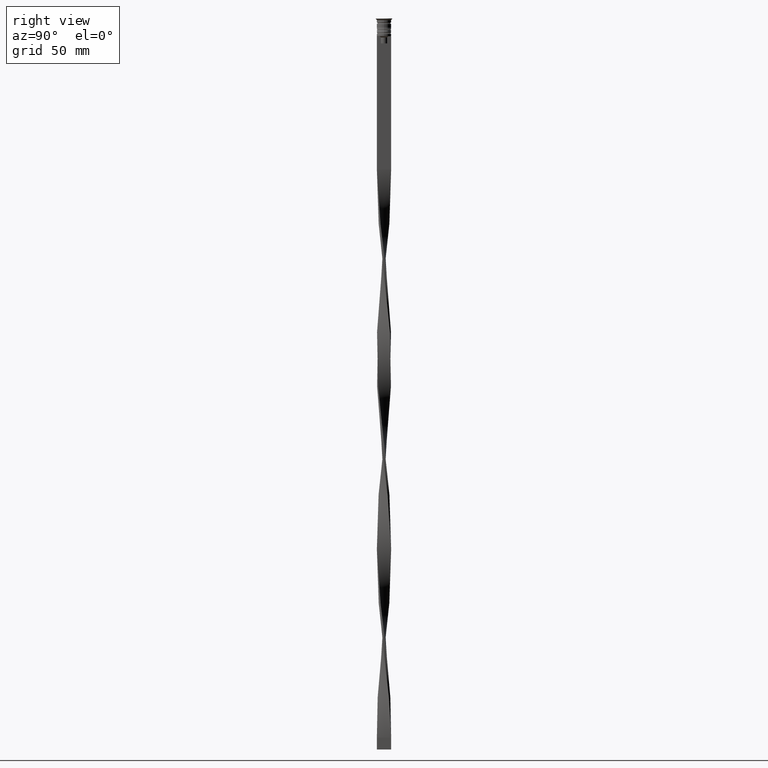
[diagram: clean part render]
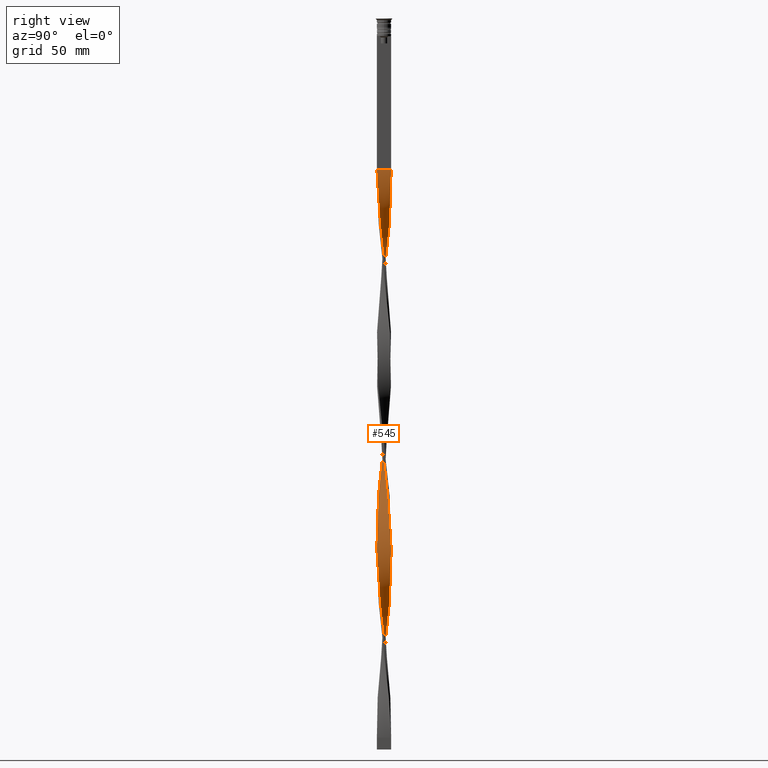
[diagram: same view with one face highlighted and labeled with its STEP entity id]
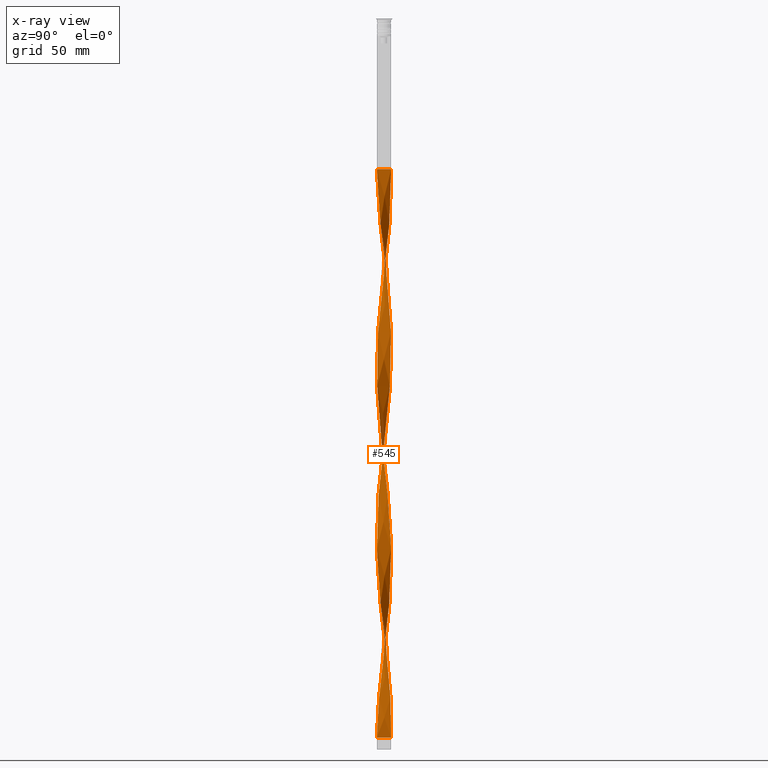
[diagram: x-ray of the same camera — body ghosted, the highlighted face saturated]
A machine part, right view. The second image highlights one B-rep face of the part: STEP entity #545.
The next image is the same camera in x-ray: the body ghosted, the highlighted face saturated — about 0% of this face is hidden behind the body in this view.
In plain terms, the highlighted face is a freeform B-spline surface patch.
Its self-contained STEP definition (entity closure, byte-faithful):
#11 = ORIENTED_EDGE ( 'NONE', *, *, #513, .F. ) ;
#16 = CARTESIAN_POINT ( 'NONE',  ( 2.133158356978605674, -2.167864254064893359, -167.0666666666666629 ) ) ;
#25 = CARTESIAN_POINT ( 'NONE',  ( -0.5000000000000000000, -1.000000000000000000, -302.5000000000000000 ) ) ;
#32 = CARTESIAN_POINT ( 'NONE',  ( 0.2638948795261445435, 3.039350853412309483, -224.8250000000000171 ) ) ;
#44 = CARTESIAN_POINT ( 'NONE',  ( 2.303772973937592283, -1.999981050443477626, -169.0583333333333655 ) ) ;
#61 = CARTESIAN_POINT ( 'NONE',  ( -2.303772973937592727, -1.999981050443477182, -196.9416666666667197 ) ) ;
#62 = CARTESIAN_POINT ( 'NONE',  ( -1.358847259689946130, 2.720943609271079033, -79.43333333333332291 ) ) ;
#73 = CARTESIAN_POINT ( 'NONE',  ( 0.02454077517687541440, -3.041282254305528010, -218.8500000000000227 ) ) ;
#78 = CARTESIAN_POINT ( 'NONE',  ( -0.4515227249772663654, -3.007678046072934208, -214.8666666666666742 ) ) ;
#79 = CARTESIAN_POINT ( 'NONE',  ( -1.572990165913118021, 2.614000010619525138, -81.42500000000002558 ) ) ;
#88 = CARTESIAN_POINT ( 'NONE',  ( 2.960649146587690961, 0.7361051204738551235, -264.6583333333333030 ) ) ;
#90 = CARTESIAN_POINT ( 'NONE',  ( 2.809046431942904931, 1.190190010362667472, -109.3083333333333371 ) ) ;
#97 = CARTESIAN_POINT ( 'NONE',  ( 3.039350853412309039, 0.2638948795261443769, -101.3416666666666686 ) ) ;
#99 = CARTESIAN_POINT ( 'NONE',  ( 2.446024322695329989, -1.807474761312824807, -171.0500000000000114 ) ) ;
#107 = CARTESIAN_POINT ( 'NONE',  ( 1.572990165913117799, 2.614000010619525138, -284.5750000000001023 ) ) ;
#116 = CARTESIAN_POINT ( 'NONE',  ( 2.720943609271079477, 1.358847259689945020, -198.9333333333333371 ) ) ;
#126 = CARTESIAN_POINT ( 'NONE',  ( 0.4515227249772658102, 3.007678046072934208, -294.5333333333333030 ) ) ;
#127 = CARTESIAN_POINT ( 'NONE',  ( 1.614968472182170878, -2.588275671453069027, -73.45833333333334281 ) ) ;
#136 = CARTESIAN_POINT ( 'NONE',  ( 1.999981050443478070, 2.303772973937592283, -208.8916666666666799 ) ) ;
#145 = CARTESIAN_POINT ( 'NONE',  ( -0.6882321207821410214, -2.972142436947120547, -212.8750000000000000 ) ) ;
#146 = CARTESIAN_POINT ( 'NONE',  ( -0.7361051204738549014, 2.960649146587690961, -145.1583333333333314 ) ) ;
#147 = CARTESIAN_POINT ( 'NONE',  ( -1.614968472182171100, -2.588275671453069027, -133.2083333333333144 ) ) ;
#158 = CARTESIAN_POINT ( 'NONE',  ( 1.807474761312824141, -2.446024322695330433, -234.7833333333333314 ) ) ;
#167 = CARTESIAN_POINT ( 'NONE',  ( -1.572990165913118021, 2.614000010619525138, -240.7583333333333542 ) ) ;
#170 = CARTESIAN_POINT ( 'NONE',  ( 2.446024322695330433, 1.807474761312824141, -115.2833333333333314 ) ) ;
#171 = CARTESIAN_POINT ( 'NONE',  ( -2.698661051697986757, 1.402579241272419175, -95.36666666666667425 ) ) ;
#181 = CARTESIAN_POINT ( 'NONE',  ( 2.588275671453069471, 1.614968472182170656, -272.6250000000000568 ) ) ;
#190 = CARTESIAN_POINT ( 'NONE',  ( 1.402579241272418953, -2.698661051697986757, -71.46666666666666856 ) ) ;
#194 = CARTESIAN_POINT ( 'NONE',  ( -2.474873734152916782, -1.767766952966368654, -123.2500000000000000 ) ) ;
#211 = CARTESIAN_POINT ( 'NONE',  ( -2.960649146587690517, 0.7361051204738553455, -260.6750000000000682 ) ) ;
#237 = CARTESIAN_POINT ( 'NONE',  ( -2.303772973937591395, 1.999981050443478514, -248.7250000000000227 ) ) ;
#257 = CARTESIAN_POINT ( 'NONE',  ( -2.474873734152916782, -1.767766952966368654, -282.5833333333333712 ) ) ;
#260 = CARTESIAN_POINT ( 'NONE',  ( 0.7361051204738573439, 2.960649146587690517, -220.8416666666667254 ) ) ;
#274 = CARTESIAN_POINT ( 'NONE',  ( -0.7361051204738547904, 2.960649146587690517, -145.1583333333333314 ) ) ;
#277 = CARTESIAN_POINT ( 'NONE',  ( -3.039350853412309483, 0.2638948795261447100, -264.6583333333333030 ) ) ;
#290 = CARTESIAN_POINT ( 'NONE',  ( -2.133158356978606562, -2.167864254064892027, -198.9333333333333371 ) ) ;
#295 = CARTESIAN_POINT ( 'NONE',  ( -0.4515227249772654772, 3.007678046072934208, -230.8000000000000114 ) ) ;
#306 = EDGE_CURVE ( 'NONE', #2562, #1203, #1804, .T. ) ;
#307 = FACE_OUTER_BOUND ( 'NONE', #1332, .T. ) ;
#317 = CARTESIAN_POINT ( 'NONE',  ( -2.335747457686308870, -1.962543740019620397, -284.5750000000001023 ) ) ;
#325 = CARTESIAN_POINT ( 'NONE',  ( 0.4999999999999998890, 3.000000000000000000, -63.50000000000000000 ) ) ;
#333 = CARTESIAN_POINT ( 'NONE',  ( 1.614968472182172210, 2.588275671453068139, -212.8750000000000000 ) ) ;
#361 = CARTESIAN_POINT ( 'NONE',  ( 2.303772973937592283, 1.999981050443478514, -117.2750000000000199 ) ) ;
#362 = CARTESIAN_POINT ( 'NONE',  ( 0.9164682371244560199, -2.900014822434876738, -155.1166666666666742 ) ) ;
#378 = CARTESIAN_POINT ( 'NONE',  ( 0.02454077517687541440, -3.041282254305528010, -218.8500000000000227 ) ) ;
#379 = CARTESIAN_POINT ( 'NONE',  ( 2.884847789265297280, -0.9631475654182618529, -179.0166666666666515 ) ) ;
#389 = CARTESIAN_POINT ( 'NONE',  ( -3.039350853412309483, -0.2638948795261426561, -181.0083333333333258 ) ) ;
#395 = CARTESIAN_POINT ( 'NONE',  ( -1.999981050443478070, 2.303772973937592283, -157.1083333333334053 ) ) ;
#397 = CARTESIAN_POINT ( 'NONE',  ( -2.960649146587690517, 0.7361051204738553455, -101.3416666666666686 ) ) ;
#405 = CARTESIAN_POINT ( 'NONE',  ( 0.2638948795261425451, -3.039350853412309483, -220.8416666666667254 ) ) ;
#407 = CARTESIAN_POINT ( 'NONE',  ( -2.335747457686308426, 1.962543740019620842, -161.0916666666666970 ) ) ;
#415 = CARTESIAN_POINT ( 'NONE',  ( -2.720943609271079033, -1.358847259689945686, -119.2666666666666799 ) ) ;
#424 = CARTESIAN_POINT ( 'NONE',  ( -3.000000000000000000, -0.4999999999999993339, -183.0000000000000000 ) ) ;
#425 = CARTESIAN_POINT ( 'NONE',  ( 2.614000010619525138, -1.572990165913117799, -85.40833333333333144 ) ) ;
#432 = ORIENTED_EDGE ( 'NONE', *, *, #306, .T. ) ;
#436 = CARTESIAN_POINT ( 'NONE',  ( 1.572990165913117577, -2.614000010619525582, -161.0916666666666970 ) ) ;
#445 = CARTESIAN_POINT ( 'NONE',  ( 2.167864254064892915, -2.133158356978606118, -238.7666666666666799 ) ) ;
#446 = CARTESIAN_POINT ( 'NONE',  ( 1.807474761312824141, -2.446024322695330433, -75.45000000000000284 ) ) ;
#455 = CARTESIAN_POINT ( 'NONE',  ( 2.900014822434876738, -0.9164682371244565751, -250.7166666666666970 ) ) ;
#461 = CARTESIAN_POINT ( 'NONE',  ( -1.614968472182171100, -2.588275671453069027, -292.5416666666666856 ) ) ;
#462 = CARTESIAN_POINT ( 'NONE',  ( 3.043213655198747869, -0.2148133291723924865, -256.6916666666666629 ) ) ;
#463 = CARTESIAN_POINT ( 'NONE',  ( -3.007678046072934208, 0.4515227249772660323, -175.0333333333333599 ) ) ;
#464 = CARTESIAN_POINT ( 'NONE',  ( -1.807474761312824363, -2.446024322695329989, -131.2166666666666686 ) ) ;
#476 = CARTESIAN_POINT ( 'NONE',  ( 3.000000000000000000, 0.4999999999999996669, -262.6666666666667425 ) ) ;
#486 = CARTESIAN_POINT ( 'NONE',  ( 2.827887207922633372, -1.144704353466774238, -89.39166666666667993 ) ) ;
#490 = CARTESIAN_POINT ( 'NONE',  ( -3.043213655198747869, -0.2148133291723919869, -109.3083333333333371 ) ) ;
#507 = CARTESIAN_POINT ( 'NONE',  ( -2.972142436947120991, -0.6882321207821388009, -272.6250000000000568 ) ) ;
#511 = CARTESIAN_POINT ( 'NONE',  ( -2.588275671453069027, 1.614968472182170878, -93.37500000000001421 ) ) ;
#513 = EDGE_CURVE ( 'NONE', #3187, #1203, #2377, .T. ) ;
#528 = CARTESIAN_POINT ( 'NONE',  ( -0.7361051204738555676, -2.960649146587690517, -300.5083333333334394 ) ) ;
#532 = CARTESIAN_POINT ( 'NONE',  ( -2.827887207922633372, -1.144704353466774016, -117.2750000000000199 ) ) ;
#545 = ADVANCED_FACE ( 'NONE', ( #307 ), #3751, .T. ) ;
#552 = CARTESIAN_POINT ( 'NONE',  ( -1.807474761312824363, -2.446024322695329989, -290.5499999999999545 ) ) ;
#573 = CARTESIAN_POINT ( 'NONE',  ( 0.2148133291723926808, 3.043213655198747869, -137.1916666666666913 ) ) ;
#577 = CARTESIAN_POINT ( 'NONE',  ( 3.007678046072934652, 0.4515227249772650331, -190.9666666666666686 ) ) ;
#590 = CARTESIAN_POINT ( 'NONE',  ( 3.041282254305528454, 0.02454077517687600768, -99.34999999999999432 ) ) ;
#593 = CARTESIAN_POINT ( 'NONE',  ( -1.572990165913117799, 2.614000010619525138, -240.7583333333333826 ) ) ;
#613 = CARTESIAN_POINT ( 'NONE',  ( -2.720943609271079033, -1.358847259689945686, -278.6000000000000227 ) ) ;
#631 = CARTESIAN_POINT ( 'NONE',  ( 2.588275671453068139, -1.614968472182171988, -173.0416666666666856 ) ) ;
#655 = CARTESIAN_POINT ( 'NONE',  ( -2.720943609271078589, 1.358847259689946352, -167.0666666666666629 ) ) ;
#656 = CARTESIAN_POINT ( 'NONE',  ( -3.007678046072934652, -0.4515227249772653106, -111.3000000000000114 ) ) ;
#676 = CARTESIAN_POINT ( 'NONE',  ( -2.827887207922633372, 1.144704353466773128, -169.0583333333333655 ) ) ;
#677 = CARTESIAN_POINT ( 'NONE',  ( 0.6882321207821385789, -2.972142436947121436, -153.1250000000000000 ) ) ;
#687 = CARTESIAN_POINT ( 'NONE',  ( 1.358847259689946352, 2.720943609271078589, -286.5666666666667197 ) ) ;
#688 = CARTESIAN_POINT ( 'NONE',  ( 3.007678046072934208, -0.4515227249772656992, -95.36666666666667425 ) ) ;
#693 = CARTESIAN_POINT ( 'NONE',  ( -1.572990165913119798, -2.614000010619523806, -204.9083333333333599 ) ) ;
#694 = CARTESIAN_POINT ( 'NONE',  ( 3.039350853412309039, -0.2638948795261437108, -184.9916666666666742 ) ) ;
#702 = CARTESIAN_POINT ( 'NONE',  ( -1.144704353466773572, -2.827887207922633372, -208.8916666666667084 ) ) ;
#703 = CARTESIAN_POINT ( 'NONE',  ( 2.960649146587690961, 0.7361051204738551235, -105.3250000000000028 ) ) ;
#710 = CARTESIAN_POINT ( 'NONE',  ( 1.999981050443478514, -2.303772973937592283, -236.7750000000000341 ) ) ;
#711 = CARTESIAN_POINT ( 'NONE',  ( 3.043213655198747869, 0.2148133291723903493, -188.9750000000000512 ) ) ;
#721 = CARTESIAN_POINT ( 'NONE',  ( -2.809046431942905819, -1.190190010362665918, -188.9750000000000227 ) ) ;
#723 = CARTESIAN_POINT ( 'NONE',  ( 2.900014822434876738, -0.9164682371244565751, -91.38333333333333997 ) ) ;
#735 = CARTESIAN_POINT ( 'NONE',  ( -2.335747457686308870, -1.962543740019620175, -125.2416666666667027 ) ) ;
#743 = CARTESIAN_POINT ( 'NONE',  ( -0.2638948795261441549, 3.039350853412309483, -300.5083333333334394 ) ) ;
#744 = CARTESIAN_POINT ( 'NONE',  ( 2.972142436947121436, -0.6882321207821390230, -93.37500000000001421 ) ) ;
#754 = CARTESIAN_POINT ( 'NONE',  ( -0.02454077517687573706, 3.041282254305528010, -298.5166666666666515 ) ) ;
#761 = CARTESIAN_POINT ( 'NONE',  ( 1.402579241272419619, 2.698661051697986757, -214.8666666666666742 ) ) ;
#763 = CARTESIAN_POINT ( 'NONE',  ( 2.335747457686308870, -1.962543740019620397, -240.7583333333333826 ) ) ;
#764 = CARTESIAN_POINT ( 'NONE',  ( 2.474873734152916782, -1.767766952966369098, -83.41666666666667140 ) ) ;
#773 = CARTESIAN_POINT ( 'NONE',  ( 2.972142436947121436, -0.6882321207821390230, -252.7083333333332860 ) ) ;
#782 = CARTESIAN_POINT ( 'NONE',  ( 2.167864254064892915, -2.133158356978606118, -79.43333333333332291 ) ) ;
#786 = CARTESIAN_POINT ( 'NONE',  ( -0.9164682371244562420, 2.900014822434877182, -75.45000000000000284 ) ) ;
#798 = CARTESIAN_POINT ( 'NONE',  ( 0.2148133291723926808, 3.043213655198747869, -296.5250000000000341 ) ) ;
#809 = CARTESIAN_POINT ( 'NONE',  ( 2.474873734152916782, -1.767766952966369098, -83.41666666666667140 ) ) ;
#812 = CARTESIAN_POINT ( 'NONE',  ( -3.041282254305528454, 0.02454077517687633381, -107.3166666666666771 ) ) ;
#830 = CARTESIAN_POINT ( 'NONE',  ( 3.043213655198747869, -0.2148133291723924587, -97.35833333333336270 ) ) ;
#834 = CARTESIAN_POINT ( 'NONE',  ( 0.6882321207821385789, -2.972142436947121436, -153.1250000000000000 ) ) ;
#848 = CARTESIAN_POINT ( 'NONE',  ( -3.000000000000000000, 0.5000000000000001110, -262.6666666666667425 ) ) ;
#852 = CARTESIAN_POINT ( 'NONE',  ( -2.960649146587690961, 0.7361051204738554565, -101.3416666666666828 ) ) ;
#861 = VECTOR ( 'NONE', #3561, 1000.000000000000000 ) ;
#871 = CARTESIAN_POINT ( 'NONE',  ( 2.588275671453069471, 1.614968472182170656, -113.2916666666666856 ) ) ;
#875 = CARTESIAN_POINT ( 'NONE',  ( 2.614000010619524250, 1.572990165913118465, -200.9250000000000398 ) ) ;
#888 = CARTESIAN_POINT ( 'NONE',  ( 2.960649146587690517, 0.7361051204738550124, -105.3249999999999886 ) ) ;
#892 = CARTESIAN_POINT ( 'NONE',  ( 1.999981050443478070, 2.303772973937591839, -208.8916666666667084 ) ) ;
#905 = CARTESIAN_POINT ( 'NONE',  ( 0.4515227249772658102, 3.007678046072934208, -135.1999999999999886 ) ) ;
#910 = CARTESIAN_POINT ( 'NONE',  ( -2.303772973937590951, 1.999981050443478514, -248.7250000000000227 ) ) ;
#930 = CARTESIAN_POINT ( 'NONE',  ( -1.767766952966369098, 2.474873734152916782, -242.7500000000000284 ) ) ;
#940 = CARTESIAN_POINT ( 'NONE',  ( -0.5000000000000002220, -3.000000000000000000, -302.5000000000000000 ) ) ;
#948 = CARTESIAN_POINT ( 'NONE',  ( 2.720943609271079477, 1.358847259689945020, -198.9333333333333371 ) ) ;
#958 = CARTESIAN_POINT ( 'NONE',  ( -2.446024322695329989, 1.807474761312824363, -91.38333333333333997 ) ) ;
#972 = CARTESIAN_POINT ( 'NONE',  ( -0.02454077517687573706, 3.041282254305528010, -139.1833333333333371 ) ) ;
#973 = CARTESIAN_POINT ( 'NONE',  ( 1.144704353466773350, -2.827887207922633372, -157.1083333333334053 ) ) ;
#985 = CARTESIAN_POINT ( 'NONE',  ( 1.402579241272418953, -2.698661051697986757, -230.8000000000000114 ) ) ;
#991 = CARTESIAN_POINT ( 'NONE',  ( -3.000000000000000000, -0.4999999999999993339, -183.0000000000000000 ) ) ;
#992 = CARTESIAN_POINT ( 'NONE',  ( -1.807474761312824363, -2.446024322695329989, -131.2166666666666686 ) ) ;
#1002 = CARTESIAN_POINT ( 'NONE',  ( -3.041282254305528010, -0.02454077517687557747, -179.0166666666666515 ) ) ;
#1003 = CARTESIAN_POINT ( 'NONE',  ( -1.402579241272418731, 2.698661051697987201, -151.1333333333333542 ) ) ;
#1008 = CARTESIAN_POINT ( 'NONE',  ( 2.167864254064892915, -2.133158356978606118, -238.7666666666666799 ) ) ;
#1009 = CARTESIAN_POINT ( 'NONE',  ( -1.144704353466773794, 2.827887207922633372, -77.44166666666669130 ) ) ;
#1018 = CARTESIAN_POINT ( 'NONE',  ( -1.572990165913119576, -2.614000010619523362, -204.9083333333333599 ) ) ;
#1019 = CARTESIAN_POINT ( 'NONE',  ( -2.614000010619523806, 1.572990165913119354, -165.0749999999999886 ) ) ;
#1027 = CARTESIAN_POINT ( 'NONE',  ( -1.190190010362667916, -2.809046431942904931, -137.1916666666666913 ) ) ;
#1037 = CARTESIAN_POINT ( 'NONE',  ( 2.474873734152916782, -1.767766952966369098, -242.7500000000000284 ) ) ;
#1039 = CARTESIAN_POINT ( 'NONE',  ( 2.884847789265297724, 0.9631475654182612978, -107.3166666666666771 ) ) ;
#1050 = CARTESIAN_POINT ( 'NONE',  ( 2.335747457686309758, 1.962543740019619731, -204.9083333333333599 ) ) ;
#1058 = CARTESIAN_POINT ( 'NONE',  ( -2.960649146587690961, -0.7361051204738561227, -184.9916666666666742 ) ) ;
#1059 = CARTESIAN_POINT ( 'NONE',  ( 3.000000000000000000, 0.4999999999999996669, -103.3333333333333286 ) ) ;
#1061 = CARTESIAN_POINT ( 'NONE',  ( -2.446024322695329989, 1.807474761312824363, -91.38333333333333997 ) ) ;
#1071 = CARTESIAN_POINT ( 'NONE',  ( 1.190190010362667694, -2.809046431942904931, -228.8083333333333655 ) ) ;
#1080 = CARTESIAN_POINT ( 'NONE',  ( -2.827887207922633372, -1.144704353466773794, -276.6083333333332916 ) ) ;
#1083 = CARTESIAN_POINT ( 'NONE',  ( -1.999981050443478070, 2.303772973937591839, -157.1083333333333769 ) ) ;
#1094 = CARTESIAN_POINT ( 'NONE',  ( 3.007678046072934208, -0.4515227249772656992, -254.7000000000000455 ) ) ;
#1101 = CARTESIAN_POINT ( 'NONE',  ( -0.4515227249772654772, 3.007678046072934208, -230.8000000000000114 ) ) ;
#1106 = CARTESIAN_POINT ( 'NONE',  ( -3.007678046072934652, -0.4515227249772653106, -111.3000000000000114 ) ) ;
#1126 = CARTESIAN_POINT ( 'NONE',  ( -0.5000000000000002220, -3.000000000000000000, -302.5000000000000000 ) ) ;
#1129 = CARTESIAN_POINT ( 'NONE',  ( 0.2148133291723918759, -3.043213655198747869, -149.1416666666667084 ) ) ;
#1147 = CARTESIAN_POINT ( 'NONE',  ( -1.358847259689946130, 2.720943609271079033, -238.7666666666666799 ) ) ;
#1150 = CARTESIAN_POINT ( 'NONE',  ( -2.972142436947120991, -0.6882321207821388009, -113.2916666666666998 ) ) ;
#1164 = CARTESIAN_POINT ( 'NONE',  ( -2.446024322695329989, 1.807474761312824363, -250.7166666666666970 ) ) ;
#1167 = CARTESIAN_POINT ( 'NONE',  ( 2.960649146587690517, -0.7361051204738571219, -181.0083333333333258 ) ) ;
#1183 = CARTESIAN_POINT ( 'NONE',  ( -2.900014822434876738, 0.9164682371244570191, -171.0500000000000114 ) ) ;
#1188 = CARTESIAN_POINT ( 'NONE',  ( -2.972142436947120991, -0.6882321207821388009, -272.6250000000000568 ) ) ;
#1202 = CARTESIAN_POINT ( 'NONE',  ( -3.039350853412309483, -0.2638948795261427116, -181.0083333333333258 ) ) ;
#1203 = VERTEX_POINT ( 'NONE', #3272 ) ;
#1207 = CARTESIAN_POINT ( 'NONE',  ( -0.9164682371244562420, 2.900014822434877182, -234.7833333333333314 ) ) ;
#1224 = CARTESIAN_POINT ( 'NONE',  ( 2.698661051697986757, -1.402579241272419397, -175.0333333333333599 ) ) ;
#1235 = CARTESIAN_POINT ( 'NONE',  ( 0.2638948795261445435, 3.039350853412309039, -65.49166666666666003 ) ) ;
#1243 = CARTESIAN_POINT ( 'NONE',  ( 1.402579241272419619, 2.698661051697986757, -214.8666666666666742 ) ) ;
#1254 = CARTESIAN_POINT ( 'NONE',  ( -0.9164682371244562420, 2.900014822434877182, -75.45000000000000284 ) ) ;
#1269 = CARTESIAN_POINT ( 'NONE',  ( -1.767766952966369765, -2.474873734152915894, -202.9166666666666572 ) ) ;
#1271 = CARTESIAN_POINT ( 'NONE',  ( -2.303772973937591395, 1.999981050443478514, -89.39166666666667993 ) ) ;
#1277 = CARTESIAN_POINT ( 'NONE',  ( -1.402579241272419397, -2.698661051697986757, -294.5333333333333030 ) ) ;
#1280 = CARTESIAN_POINT ( 'NONE',  ( 2.720943609271079033, -1.358847259689946130, -246.7333333333333201 ) ) ;
#1284 = CARTESIAN_POINT ( 'NONE',  ( 3.000000000000000000, 0.4999999999999996669, -103.3333333333333286 ) ) ;
#1285 = CARTESIAN_POINT ( 'NONE',  ( 2.960649146587690073, -0.7361051204738571219, -181.0083333333333258 ) ) ;
#1298 = CARTESIAN_POINT ( 'NONE',  ( 2.972142436947121436, -0.6882321207821390230, -252.7083333333333144 ) ) ;
#1299 = CARTESIAN_POINT ( 'NONE',  ( 2.303772973937591839, 1.999981050443478514, -117.2750000000000199 ) ) ;
#1308 = CARTESIAN_POINT ( 'NONE',  ( -0.6882321207821390230, 2.972142436947121436, -73.45833333333335702 ) ) ;
#1314 = CARTESIAN_POINT ( 'NONE',  ( -0.5000000000000002220, -3.000000000000000000, -302.5000000000000000 ) ) ;
#1319 = CARTESIAN_POINT ( 'NONE',  ( 1.767766952966369320, 2.474873734152916338, -282.5833333333333712 ) ) ;
#1320 = CARTESIAN_POINT ( 'NONE',  ( 2.167864254064892915, -2.133158356978606118, -79.43333333333332291 ) ) ;
#1328 = CARTESIAN_POINT ( 'NONE',  ( -2.133158356978606118, 2.167864254064892915, -87.40000000000000568 ) ) ;
#1332 = EDGE_LOOP ( 'NONE', ( #2332, #432, #11, #2802 ) ) ;
#1333 = CARTESIAN_POINT ( 'NONE',  ( -1.190190010362667916, -2.809046431942904931, -296.5250000000000341 ) ) ;
#1336 = CARTESIAN_POINT ( 'NONE',  ( 0.2148133291723926808, 3.043213655198747869, -296.5250000000000341 ) ) ;
#1337 = CARTESIAN_POINT ( 'NONE',  ( 0.2148133291723926808, 3.043213655198747869, -137.1916666666666913 ) ) ;
#1346 = CARTESIAN_POINT ( 'NONE',  ( 2.303772973937592283, 1.999981050443478514, -276.6083333333332916 ) ) ;
#1347 = CARTESIAN_POINT ( 'NONE',  ( 2.614000010619524250, 1.572990165913118688, -200.9250000000000682 ) ) ;
#1349 = CARTESIAN_POINT ( 'NONE',  ( 0.4999999999999998890, -3.000000000000000000, -63.50000000000000000 ) ) ;
#1355 = CARTESIAN_POINT ( 'NONE',  ( 2.827887207922633372, -1.144704353466774460, -248.7250000000000227 ) ) ;
#1357 = CARTESIAN_POINT ( 'NONE',  ( 0.9631475654182614088, -2.884847789265297724, -67.48333333333333428 ) ) ;
#1358 = CARTESIAN_POINT ( 'NONE',  ( -0.7361051204738556786, -2.960649146587690961, -141.1749999999999829 ) ) ;
#1378 = CARTESIAN_POINT ( 'NONE',  ( -2.698661051697986757, 1.402579241272419175, -254.7000000000000455 ) ) ;
#1381 = CARTESIAN_POINT ( 'NONE',  ( 0.9164682371244567971, 2.900014822434876738, -131.2166666666666686 ) ) ;
#1383 = CARTESIAN_POINT ( 'NONE',  ( 0.02454077517687617074, 3.041282254305528454, -67.48333333333333428 ) ) ;
#1395 = CARTESIAN_POINT ( 'NONE',  ( 1.358847259689946352, 2.720943609271078589, -286.5666666666667197 ) ) ;
#1403 = CARTESIAN_POINT ( 'NONE',  ( 0.9631475654182620749, 2.884847789265297280, -218.8500000000000227 ) ) ;
#1407 = CARTESIAN_POINT ( 'NONE',  ( -2.335747457686308870, -1.962543740019620397, -125.2416666666667027 ) ) ;
#1422 = CARTESIAN_POINT ( 'NONE',  ( -2.809046431942904931, 1.190190010362667694, -256.6916666666666629 ) ) ;
#1425 = CARTESIAN_POINT ( 'NONE',  ( -2.720943609271079033, -1.358847259689945686, -119.2666666666666799 ) ) ;
#1446 = CARTESIAN_POINT ( 'NONE',  ( 2.720943609271079033, -1.358847259689946130, -87.40000000000000568 ) ) ;
#1449 = CARTESIAN_POINT ( 'NONE',  ( -1.144704353466774016, 2.827887207922633372, -77.44166666666669130 ) ) ;
#1466 = CARTESIAN_POINT ( 'NONE',  ( -2.884847789265297724, 0.9631475654182616308, -258.6833333333333940 ) ) ;
#1469 = CARTESIAN_POINT ( 'NONE',  ( 2.474873734152917226, 1.767766952966368210, -202.9166666666666572 ) ) ;
#1481 = CARTESIAN_POINT ( 'NONE',  ( -2.167864254064892471, 2.133158356978606118, -159.1000000000000227 ) ) ;
#1485 = CARTESIAN_POINT ( 'NONE',  ( -3.043213655198747869, -0.2148133291723919869, -268.6416666666666515 ) ) ;
#1496 = CARTESIAN_POINT ( 'NONE',  ( -0.4999999999999997780, 1.000000000000000000, -302.5000000000000000 ) ) ;
#1501 = CARTESIAN_POINT ( 'NONE',  ( -1.962543740019620175, -2.335747457686309314, -200.9250000000000682 ) ) ;
#1506 = CARTESIAN_POINT ( 'NONE',  ( -2.809046431942904931, 1.190190010362667472, -256.6916666666666629 ) ) ;
#1524 = CARTESIAN_POINT ( 'NONE',  ( -2.167864254064893359, -2.133158356978605674, -286.5666666666667197 ) ) ;
#1540 = CARTESIAN_POINT ( 'NONE',  ( 0.9631475654182620749, 2.884847789265297280, -218.8500000000000227 ) ) ;
#1570 = CARTESIAN_POINT ( 'NONE',  ( 0.9164682371244567971, 2.900014822434876738, -131.2166666666666686 ) ) ;
#1571 = CARTESIAN_POINT ( 'NONE',  ( -3.039350853412309039, 0.2638948795261447100, -105.3249999999999886 ) ) ;
#1586 = CARTESIAN_POINT ( 'NONE',  ( 0.4999999999999998890, -3.000000000000000000, -222.8333333333333144 ) ) ;
#1587 = CARTESIAN_POINT ( 'NONE',  ( -1.962543740019620175, 2.335747457686308870, -85.40833333333333144 ) ) ;
#1597 = CARTESIAN_POINT ( 'NONE',  ( -2.133158356978606562, -2.167864254064892027, -198.9333333333333371 ) ) ;
#1603 = CARTESIAN_POINT ( 'NONE',  ( -1.144704353466773350, -2.827887207922633372, -208.8916666666666799 ) ) ;
#1604 = CARTESIAN_POINT ( 'NONE',  ( 0.2148133291723918481, -3.043213655198747869, -149.1416666666667084 ) ) ;
#1612 = CARTESIAN_POINT ( 'NONE',  ( -0.9631475654182616308, -2.884847789265297280, -298.5166666666666515 ) ) ;
#1616 = CARTESIAN_POINT ( 'NONE',  ( 3.039350853412309483, 0.2638948795261443769, -260.6750000000000682 ) ) ;
#1617 = CARTESIAN_POINT ( 'NONE',  ( -2.474873734152916338, 1.767766952966369765, -163.0833333333333712 ) ) ;
#1625 = CARTESIAN_POINT ( 'NONE',  ( 3.043213655198747869, -0.2148133291723924587, -256.6916666666666629 ) ) ;
#1626 = CARTESIAN_POINT ( 'NONE',  ( 3.007678046072934652, 0.4515227249772650331, -190.9666666666666686 ) ) ;
#1636 = CARTESIAN_POINT ( 'NONE',  ( 2.446024322695330433, 1.807474761312824141, -274.6166666666666742 ) ) ;
#1645 = CARTESIAN_POINT ( 'NONE',  ( 2.809046431942904931, -1.190190010362666806, -177.0250000000000341 ) ) ;
#1654 = CARTESIAN_POINT ( 'NONE',  ( 2.614000010619525138, -1.572990165913117799, -244.7416666666667027 ) ) ;
#1655 = CARTESIAN_POINT ( 'NONE',  ( 0.6882321207821392450, 2.972142436947121436, -133.2083333333333144 ) ) ;
#1665 = CARTESIAN_POINT ( 'NONE',  ( 3.039350853412309039, 0.2638948795261443769, -260.6750000000000682 ) ) ;
#1673 = CARTESIAN_POINT ( 'NONE',  ( 0.9631475654182614088, -2.884847789265297724, -67.48333333333333428 ) ) ;
#1676 = CARTESIAN_POINT ( 'NONE',  ( -0.4999999999999995559, 3.000000000000000000, -143.1666666666666572 ) ) ;
#1697 = CARTESIAN_POINT ( 'NONE',  ( 3.007678046072934208, -0.4515227249772656992, -95.36666666666667425 ) ) ;
#1702 = CARTESIAN_POINT ( 'NONE',  ( -2.900014822434877182, -0.9164682371244562420, -115.2833333333333314 ) ) ;
#1720 = CARTESIAN_POINT ( 'NONE',  ( 0.2638948795261445435, 3.039350853412309039, -224.8250000000000171 ) ) ;
#1739 = CARTESIAN_POINT ( 'NONE',  ( -1.999981050443478514, -2.303772973937591395, -288.5583333333333940 ) ) ;
#1762 = CARTESIAN_POINT ( 'NONE',  ( 0.7361051204738573439, 2.960649146587690073, -220.8416666666666970 ) ) ;
#1766 = CARTESIAN_POINT ( 'NONE',  ( -2.446024322695329989, 1.807474761312824363, -250.7166666666666970 ) ) ;
#1782 = CARTESIAN_POINT ( 'NONE',  ( -0.2638948795261441549, 3.039350853412309039, -141.1749999999999829 ) ) ;
#1785 = CARTESIAN_POINT ( 'NONE',  ( -2.884847789265297724, 0.9631475654182616308, -258.6833333333333940 ) ) ;
#1800 = CARTESIAN_POINT ( 'NONE',  ( -2.588275671453068583, -1.614968472182171322, -192.9583333333333428 ) ) ;
#1804 =( BOUNDED_CURVE ( )  B_SPLINE_CURVE ( 2, ( #3161, #3140, #1357, #2843, #2301, #127, #446, #3480, #1320, #2541, #764, #425, #3439, #1975, #723, #744, #688, #3181, #2823, #3781, #1059, #703, #1039, #90, #2222, #2259, #170, #1299, #2605, #3500, #3807, #3828, #2237, #2525, #1381, #1655, #2861, #1337, #2880, #3746, #1676, #146, #2584, #1898, #1003, #3764, #1913, #1083, #3124, #407, #1617, #1019, #3456, #1934, #2279, #3199, #463, #2524, #1002, #389, #424, #1058, #3806, #721, #1897, #3780, #3180, #2879, #1597, #3763, #2221, #1018, #1974, #702, #2278, #145, #2236, #1933, #73, #405, #3499, #3198, #3123, #2503, #985, #3139, #1912, #3745, #445, #763, #1037, #1654, #1280, #1355, #3455, #1298, #3160, #462, #2807, #1616, #2822, #88, #2842, #3438, #3725, #2203, #1636, #2258, #2583, #3422, #1319, #107, #687, #3479, #2540, #2860, #126, #1336, #2558, #743, #1954 ),
 .UNSPECIFIED., .F., .T. ) 
 B_SPLINE_CURVE_WITH_KNOTS ( ( 3, 2, 2, 2, 2, 2, 2, 2, 2, 2, 2, 2, 2, 2, 2, 2, 2, 2, 2, 2, 2, 2, 2, 2, 2, 2, 2, 2, 2, 2, 2, 2, 2, 2, 2, 2, 2, 2, 2, 2, 2, 2, 2, 2, 2, 2, 2, 2, 2, 2, 2, 2, 2, 2, 2, 2, 2, 2, 2, 2, 3 ),
 ( 0.000000000000000000, 0.01250000000000000243, 0.02500000000000000486, 0.03749999999999999861, 0.05000000000000000971, 0.06250000000000000000, 0.07499999999999999722, 0.08749999999999998057, 0.1000000000000000194, 0.1125000000000000028, 0.1250000000000000000, 0.1375000000000000111, 0.1499999999999999944, 0.1625000000000000056, 0.1749999999999999611, 0.1875000000000000000, 0.2000000000000000389, 0.2124999999999999944, 0.2250000000000000056, 0.2374999999999999611, 0.2500000000000000000, 0.2625000000000000111, 0.2750000000000000222, 0.2874999999999999778, 0.2999999999999999889, 0.3125000000000000000, 0.3250000000000000111, 0.3375000000000000777, 0.3499999999999999223, 0.3624999999999999889, 0.3750000000000000000, 0.3875000000000000111, 0.4000000000000000777, 0.4124999999999999223, 0.4249999999999999889, 0.4375000000000000000, 0.4500000000000000111, 0.4625000000000000777, 0.4749999999999999223, 0.4874999999999999889, 0.5000000000000000000, 0.5124999999999999556, 0.5250000000000000222, 0.5374999999999999778, 0.5500000000000000444, 0.5625000000000000000, 0.5749999999999999556, 0.5875000000000000222, 0.5999999999999999778, 0.6125000000000000444, 0.6250000000000000000, 0.6374999999999999556, 0.6500000000000000222, 0.6624999999999999778, 0.6750000000000001554, 0.6875000000000000000, 0.6999999999999998446, 0.7125000000000000222, 0.7249999999999999778, 0.7375000000000001554, 0.7500000000000000000 ),
 .UNSPECIFIED. ) 
 CURVE ( )  GEOMETRIC_REPRESENTATION_ITEM ( )  RATIONAL_B_SPLINE_CURVE ( ( 1.000000000000000000, 0.9969173337331279638, 1.000000000000000000, 0.9969173337331279638, 1.000000000000000000, 0.9969173337331279638, 1.000000000000000000, 0.9969173337331279638, 1.000000000000000000, 0.9969173337331279638, 1.000000000000000000, 0.9969173337331279638, 1.000000000000000000, 0.9969173337331279638, 1.000000000000000000, 0.9969173337331279638, 1.000000000000000000, 0.9969173337331279638, 1.000000000000000000, 0.9969173337331279638, 1.000000000000000000, 0.9969173337331279638, 1.000000000000000000, 0.9969173337331279638, 1.000000000000000000, 0.9969173337331279638, 1.000000000000000000, 0.9969173337331279638, 1.000000000000000000, 0.9969173337331279638, 1.000000000000000000, 0.9969173337331279638, 1.000000000000000000, 0.9969173337331279638, 1.000000000000000000, 0.9969173337331279638, 1.000000000000000000, 0.9969173337331279638, 1.000000000000000000, 0.9969173337331279638, 1.000000000000000000, 0.9969173337331279638, 1.000000000000000000, 0.9969173337331279638, 1.000000000000000000, 0.9969173337331279638, 1.000000000000000000, 0.9969173337331279638, 1.000000000000000000, 0.9969173337331279638, 1.000000000000000000, 0.9969173337331279638, 1.000000000000000000, 0.9969173337331279638, 1.000000000000000000, 0.9969173337331279638, 1.000000000000000000, 0.9969173337331279638, 1.000000000000000000, 0.9969173337331279638, 1.000000000000000000, 0.9969173337331279638, 1.000000000000000000, 0.9969173337331279638, 1.000000000000000000, 0.9969173337331279638, 1.000000000000000000, 0.9969173337331279638, 1.000000000000000000, 0.9969173337331279638, 1.000000000000000000, 0.9969173337331279638, 1.000000000000000000, 0.9969173337331279638, 1.000000000000000000, 0.9969173337331279638, 1.000000000000000000, 0.9969173337331279638, 1.000000000000000000, 0.9969173337331279638, 1.000000000000000000, 0.9969173337331279638, 1.000000000000000000, 0.9969173337331279638, 1.000000000000000000, 0.9969173337331279638, 1.000000000000000000, 0.9969173337331279638, 1.000000000000000000, 0.9969173337331279638, 1.000000000000000000, 0.9969173337331279638, 1.000000000000000000, 0.9969173337331279638, 1.000000000000000000, 0.9969173337331279638, 1.000000000000000000, 0.9969173337331279638, 1.000000000000000000, 0.9969173337331279638, 1.000000000000000000, 0.9969173337331279638, 1.000000000000000000, 0.9969173337331279638, 1.000000000000000000, 0.9969173337331279638, 1.000000000000000000, 0.9969173337331279638, 1.000000000000000000, 0.9969173337331279638, 1.000000000000000000, 0.9969173337331279638, 1.000000000000000000, 0.9969173337331279638, 1.000000000000000000, 0.9969173337331279638, 1.000000000000000000, 0.9969173337331279638, 1.000000000000000000, 0.9969173337331279638, 1.000000000000000000 ) ) 
 REPRESENTATION_ITEM ( '' )  );
#1805 = CARTESIAN_POINT ( 'NONE',  ( 2.809046431942904931, -1.190190010362666806, -177.0250000000000057 ) ) ;
#1826 = CARTESIAN_POINT ( 'NONE',  ( -2.614000010619525138, -1.572990165913117577, -280.5916666666666970 ) ) ;
#1833 = EDGE_CURVE ( 'NONE', #2562, #2071, #2893, .T. ) ;
#1841 = CARTESIAN_POINT ( 'NONE',  ( 3.043213655198747869, 0.2148133291723903215, -188.9750000000000227 ) ) ;
#1865 = CARTESIAN_POINT ( 'NONE',  ( -1.614968472182170434, 2.588275671453069915, -153.1250000000000000 ) ) ;
#1867 = CARTESIAN_POINT ( 'NONE',  ( -0.7361051204738555676, -2.960649146587690517, -141.1749999999999829 ) ) ;
#1884 = CARTESIAN_POINT ( 'NONE',  ( -2.972142436947120547, 0.6882321207821407993, -173.0416666666666856 ) ) ;
#1885 = CARTESIAN_POINT ( 'NONE',  ( 1.962543740019620175, -2.335747457686309758, -165.0749999999999886 ) ) ;
#1897 = CARTESIAN_POINT ( 'NONE',  ( -2.698661051697987201, -1.402579241272418509, -190.9666666666666686 ) ) ;
#1898 = CARTESIAN_POINT ( 'NONE',  ( -1.190190010362667250, 2.809046431942904931, -149.1416666666667084 ) ) ;
#1903 = CARTESIAN_POINT ( 'NONE',  ( -0.2148133291723915983, -3.043213655198747869, -216.8583333333333769 ) ) ;
#1904 = CARTESIAN_POINT ( 'NONE',  ( 3.041282254305528454, -0.02454077517687676749, -186.9833333333333485 ) ) ;
#1912 = CARTESIAN_POINT ( 'NONE',  ( 1.807474761312824141, -2.446024322695330433, -234.7833333333333314 ) ) ;
#1913 = CARTESIAN_POINT ( 'NONE',  ( -1.807474761312823919, 2.446024322695330877, -155.1166666666666742 ) ) ;
#1918 = CARTESIAN_POINT ( 'NONE',  ( 1.962543740019620175, 2.335747457686308426, -280.5916666666666401 ) ) ;
#1920 = CARTESIAN_POINT ( 'NONE',  ( 2.972142436947120991, 0.6882321207821398001, -192.9583333333333428 ) ) ;
#1933 = CARTESIAN_POINT ( 'NONE',  ( -0.2148133291723915705, -3.043213655198747869, -216.8583333333333769 ) ) ;
#1934 = CARTESIAN_POINT ( 'NONE',  ( -2.827887207922633372, 1.144704353466773350, -169.0583333333333655 ) ) ;
#1942 = CARTESIAN_POINT ( 'NONE',  ( -2.972142436947120991, -0.6882321207821388009, -113.2916666666666856 ) ) ;
#1954 = CARTESIAN_POINT ( 'NONE',  ( -0.4999999999999995559, 3.000000000000000000, -302.5000000000000000 ) ) ;
#1965 = CARTESIAN_POINT ( 'NONE',  ( 2.335747457686308870, -1.962543740019620175, -240.7583333333333542 ) ) ;
#1971 = CARTESIAN_POINT ( 'NONE',  ( -0.2148133291723922367, 3.043213655198747869, -228.8083333333333655 ) ) ;
#1974 = CARTESIAN_POINT ( 'NONE',  ( -1.358847259689946574, -2.720943609271078589, -206.9000000000000057 ) ) ;
#1975 = CARTESIAN_POINT ( 'NONE',  ( 2.827887207922633372, -1.144704353466774460, -89.39166666666667993 ) ) ;
#1976 = CARTESIAN_POINT ( 'NONE',  ( -1.767766952966369098, 2.474873734152916782, -83.41666666666667140 ) ) ;
#1986 = CARTESIAN_POINT ( 'NONE',  ( 2.446024322695330433, 1.807474761312824141, -274.6166666666666742 ) ) ;
#1993 = CARTESIAN_POINT ( 'NONE',  ( 2.614000010619525138, -1.572990165913118021, -85.40833333333333144 ) ) ;
#1998 = CARTESIAN_POINT ( 'NONE',  ( -3.039350853412309483, 0.2638948795261447100, -105.3250000000000028 ) ) ;
#2011 = CARTESIAN_POINT ( 'NONE',  ( 2.698661051697987201, 1.402579241272418953, -270.6333333333333258 ) ) ;
#2021 = CARTESIAN_POINT ( 'NONE',  ( -3.043213655198747869, -0.2148133291723919591, -268.6416666666666515 ) ) ;
#2045 = CARTESIAN_POINT ( 'NONE',  ( -1.144704353466773794, 2.827887207922633372, -236.7750000000000341 ) ) ;
#2049 = CARTESIAN_POINT ( 'NONE',  ( 1.144704353466773572, -2.827887207922633372, -157.1083333333333769 ) ) ;
#2065 = CARTESIAN_POINT ( 'NONE',  ( -3.041282254305528454, 0.02454077517687633381, -266.6499999999999773 ) ) ;
#2069 = CARTESIAN_POINT ( 'NONE',  ( -0.4515227249772654772, 3.007678046072934208, -71.46666666666666856 ) ) ;
#2071 = VERTEX_POINT ( 'NONE', #2715 ) ;
#2086 = CARTESIAN_POINT ( 'NONE',  ( 1.144704353466774238, 2.827887207922633372, -129.2250000000000512 ) ) ;
#2090 = CARTESIAN_POINT ( 'NONE',  ( -2.698661051697986757, 1.402579241272419175, -254.7000000000000455 ) ) ;
#2105 = CARTESIAN_POINT ( 'NONE',  ( -2.884847789265297724, -0.9631475654182608537, -186.9833333333333485 ) ) ;
#2109 = CARTESIAN_POINT ( 'NONE',  ( 2.167864254064893803, 2.133158356978605674, -206.9000000000000057 ) ) ;
#2122 = CARTESIAN_POINT ( 'NONE',  ( -1.402579241272418731, 2.698661051697987201, -151.1333333333333542 ) ) ;
#2126 = CARTESIAN_POINT ( 'NONE',  ( -3.041282254305528454, 0.02454077517687633381, -266.6499999999999773 ) ) ;
#2147 = CARTESIAN_POINT ( 'NONE',  ( 3.041282254305528454, -0.02454077517687676749, -186.9833333333333485 ) ) ;
#2157 = CARTESIAN_POINT ( 'NONE',  ( -0.2148133291723922367, 3.043213655198747869, -69.47499999999999432 ) ) ;
#2163 = CARTESIAN_POINT ( 'NONE',  ( -1.962543740019620397, 2.335747457686308870, -244.7416666666667027 ) ) ;
#2172 = CARTESIAN_POINT ( 'NONE',  ( -2.474873734152916782, -1.767766952966368654, -123.2500000000000000 ) ) ;
#2187 = CARTESIAN_POINT ( 'NONE',  ( -0.9631475654182609647, 2.884847789265297724, -147.1500000000000057 ) ) ;
#2189 = CARTESIAN_POINT ( 'NONE',  ( -2.900014822434877182, -0.9164682371244562420, -115.2833333333333314 ) ) ;
#2203 = CARTESIAN_POINT ( 'NONE',  ( 2.588275671453069471, 1.614968472182170656, -272.6250000000000568 ) ) ;
#2209 = CARTESIAN_POINT ( 'NONE',  ( -3.041282254305528010, -0.02454077517687557747, -179.0166666666666515 ) ) ;
#2210 = CARTESIAN_POINT ( 'NONE',  ( 1.767766952966368654, -2.474873734152917226, -163.0833333333333712 ) ) ;
#2221 = CARTESIAN_POINT ( 'NONE',  ( -1.767766952966369765, -2.474873734152915894, -202.9166666666666572 ) ) ;
#2222 = CARTESIAN_POINT ( 'NONE',  ( 2.698661051697987201, 1.402579241272418953, -111.3000000000000114 ) ) ;
#2228 = CARTESIAN_POINT ( 'NONE',  ( 1.402579241272418953, -2.698661051697986757, -230.8000000000000114 ) ) ;
#2229 = CARTESIAN_POINT ( 'NONE',  ( -1.614968472182171100, -2.588275671453069027, -133.2083333333333144 ) ) ;
#2236 = CARTESIAN_POINT ( 'NONE',  ( -0.4515227249772663654, -3.007678046072934208, -214.8666666666666742 ) ) ;
#2237 = CARTESIAN_POINT ( 'NONE',  ( 1.358847259689946352, 2.720943609271078589, -127.2333333333333343 ) ) ;
#2244 = CARTESIAN_POINT ( 'NONE',  ( 2.720943609271079033, -1.358847259689946130, -246.7333333333333201 ) ) ;
#2245 = CARTESIAN_POINT ( 'NONE',  ( -3.043213655198747869, -0.2148133291723919591, -109.3083333333333371 ) ) ;
#2258 = CARTESIAN_POINT ( 'NONE',  ( 2.303772973937591839, 1.999981050443478514, -276.6083333333333485 ) ) ;
#2259 = CARTESIAN_POINT ( 'NONE',  ( 2.588275671453069471, 1.614968472182170656, -113.2916666666666998 ) ) ;
#2268 = CARTESIAN_POINT ( 'NONE',  ( 0.9631475654182614088, -2.884847789265297724, -226.8166666666666629 ) ) ;
#2278 = CARTESIAN_POINT ( 'NONE',  ( -0.9164682371244570191, -2.900014822434876738, -210.8833333333333258 ) ) ;
#2279 = CARTESIAN_POINT ( 'NONE',  ( -2.900014822434876738, 0.9164682371244570191, -171.0500000000000114 ) ) ;
#2280 = CARTESIAN_POINT ( 'NONE',  ( -2.884847789265297724, 0.9631475654182616308, -99.34999999999999432 ) ) ;
#2298 = CARTESIAN_POINT ( 'NONE',  ( 1.807474761312824141, -2.446024322695330433, -75.45000000000000284 ) ) ;
#2301 = CARTESIAN_POINT ( 'NONE',  ( 1.402579241272418953, -2.698661051697986757, -71.46666666666666856 ) ) ;
#2302 = CARTESIAN_POINT ( 'NONE',  ( -1.358847259689946130, 2.720943609271079033, -79.43333333333332291 ) ) ;
#2311 = CARTESIAN_POINT ( 'NONE',  ( 1.614968472182170878, -2.588275671453069027, -232.7916666666666572 ) ) ;
#2321 = CARTESIAN_POINT ( 'NONE',  ( -2.720943609271079033, -1.358847259689945686, -278.6000000000000227 ) ) ;
#2326 = CARTESIAN_POINT ( 'NONE',  ( -0.9631475654182616308, -2.884847789265297280, -139.1833333333333371 ) ) ;
#2332 = ORIENTED_EDGE ( 'NONE', *, *, #1833, .F. ) ;
#2345 = CARTESIAN_POINT ( 'NONE',  ( -1.767766952966369098, 2.474873734152916782, -242.7500000000000284 ) ) ;
#2349 = CARTESIAN_POINT ( 'NONE',  ( 0.4515227249772650886, -3.007678046072934652, -151.1333333333333542 ) ) ;
#2364 = CARTESIAN_POINT ( 'NONE',  ( -2.133158356978606118, 2.167864254064892915, -246.7333333333333201 ) ) ;
#2368 = CARTESIAN_POINT ( 'NONE',  ( -0.6882321207821390230, 2.972142436947121436, -73.45833333333334281 ) ) ;
#2377 = B_SPLINE_CURVE_WITH_KNOTS ( 'NONE', 3,
 ( #940, #25, #1496, #3073 ),
 .UNSPECIFIED., .F., .F.,
 ( 4, 4 ),
 ( 0.000000000000000000, 1.000000000000000000 ),
 .UNSPECIFIED. ) ;
#2384 = CARTESIAN_POINT ( 'NONE',  ( 2.446024322695330433, 1.807474761312824141, -115.2833333333333314 ) ) ;
#2388 = CARTESIAN_POINT ( 'NONE',  ( -1.144704353466774016, 2.827887207922633372, -236.7750000000000341 ) ) ;
#2389 = EDGE_CURVE ( 'NONE', #2071, #3187, #2624, .T. ) ;
#2409 = CARTESIAN_POINT ( 'NONE',  ( -3.007678046072934208, 0.4515227249772660323, -175.0333333333333599 ) ) ;
#2412 = CARTESIAN_POINT ( 'NONE',  ( -2.900014822434877182, -0.9164682371244562420, -274.6166666666666742 ) ) ;
#2425 = CARTESIAN_POINT ( 'NONE',  ( 1.962543740019620175, 2.335747457686308426, -121.2583333333333400 ) ) ;
#2429 = CARTESIAN_POINT ( 'NONE',  ( -1.358847259689946130, 2.720943609271079033, -238.7666666666666799 ) ) ;
#2447 = CARTESIAN_POINT ( 'NONE',  ( 1.190190010362667028, 2.809046431942904931, -216.8583333333333769 ) ) ;
#2460 = CARTESIAN_POINT ( 'NONE',  ( 0.02454077517687617074, 3.041282254305528454, -67.48333333333333428 ) ) ;
#2468 = CARTESIAN_POINT ( 'NONE',  ( 2.446024322695329989, -1.807474761312824807, -171.0500000000000114 ) ) ;
#2477 = CARTESIAN_POINT ( 'NONE',  ( 0.4515227249772650886, -3.007678046072934652, -151.1333333333333542 ) ) ;
#2483 = CARTESIAN_POINT ( 'NONE',  ( -1.807474761312824363, -2.446024322695329989, -290.5499999999999545 ) ) ;
#2492 = CARTESIAN_POINT ( 'NONE',  ( 1.767766952966369320, 2.474873734152916338, -123.2500000000000000 ) ) ;
#2493 = CARTESIAN_POINT ( 'NONE',  ( -2.809046431942904931, 1.190190010362667694, -97.35833333333336270 ) ) ;
#2503 = CARTESIAN_POINT ( 'NONE',  ( 1.190190010362667472, -2.809046431942904931, -228.8083333333333655 ) ) ;
#2509 = CARTESIAN_POINT ( 'NONE',  ( 2.133158356978606118, 2.167864254064892471, -119.2666666666666799 ) ) ;
#2511 = CARTESIAN_POINT ( 'NONE',  ( -1.999981050443478514, -2.303772973937591395, -129.2250000000000512 ) ) ;
#2524 = CARTESIAN_POINT ( 'NONE',  ( -3.043213655198747869, 0.2148133291723914595, -177.0250000000000057 ) ) ;
#2525 = CARTESIAN_POINT ( 'NONE',  ( 1.144704353466774460, 2.827887207922633372, -129.2250000000000227 ) ) ;
#2530 = CARTESIAN_POINT ( 'NONE',  ( 2.133158356978606118, 2.167864254064892471, -278.6000000000000227 ) ) ;
#2531 = CARTESIAN_POINT ( 'NONE',  ( 2.588275671453068139, -1.614968472182172210, -173.0416666666666856 ) ) ;
#2540 = CARTESIAN_POINT ( 'NONE',  ( 0.9164682371244567971, 2.900014822434876738, -290.5499999999999545 ) ) ;
#2541 = CARTESIAN_POINT ( 'NONE',  ( 2.335747457686308870, -1.962543740019620397, -81.42500000000001137 ) ) ;
#2549 = CARTESIAN_POINT ( 'NONE',  ( -2.827887207922633372, -1.144704353466773794, -117.2750000000000199 ) ) ;
#2555 = CARTESIAN_POINT ( 'NONE',  ( -0.7361051204738556786, -2.960649146587690961, -300.5083333333334394 ) ) ;
#2558 = CARTESIAN_POINT ( 'NONE',  ( -0.02454077517687573706, 3.041282254305528010, -298.5166666666666515 ) ) ;
#2562 = VERTEX_POINT ( 'NONE', #3101 ) ;
#2569 = CARTESIAN_POINT ( 'NONE',  ( 1.807474761312824807, 2.446024322695329989, -210.8833333333333258 ) ) ;
#2583 = CARTESIAN_POINT ( 'NONE',  ( 2.133158356978606118, 2.167864254064892471, -278.6000000000000227 ) ) ;
#2584 = CARTESIAN_POINT ( 'NONE',  ( -0.9631475654182609647, 2.884847789265297724, -147.1500000000000057 ) ) ;
#2602 = CARTESIAN_POINT ( 'NONE',  ( -3.007678046072934652, -0.4515227249772653106, -270.6333333333333258 ) ) ;
#2605 = CARTESIAN_POINT ( 'NONE',  ( 2.133158356978606118, 2.167864254064892471, -119.2666666666666799 ) ) ;
#2616 = CARTESIAN_POINT ( 'NONE',  ( 2.960649146587690517, 0.7361051204738550124, -264.6583333333333599 ) ) ;
#2624 =( BOUNDED_CURVE ( )  B_SPLINE_CURVE ( 2, ( #2966, #3850, #1383, #3248, #2069, #2368, #786, #1449, #2302, #3593, #1976, #2902, #3523, #3289, #1061, #511, #171, #3226, #2280, #852, #3200, #1998, #812, #490, #1106, #1150, #1702, #532, #1425, #2926, #194, #1407, #2881, #2628, #464, #147, #2945, #2651, #2326, #1358, #3808, #3547, #3873, #1129, #2349, #834, #2675, #2049, #3893, #3653, #3669, #3066, #16, #3367, #2468, #631, #1224, #1805, #2988, #1167, #3635, #2750, #2147, #1841, #577, #2731, #3932, #3951, #948, #875, #1469, #3911, #2109, #892, #2710, #333, #1243, #2447, #1540, #260, #2765, #32, #3328, #3689, #295, #3612, #1207, #2388, #2429, #593, #930, #2163, #3383, #910, #1766, #2694, #2090, #1506, #1785, #3311, #3007, #277, #2126, #1485, #3349, #1188, #2412, #3025, #613, #1826, #3049, #317, #1524, #3135, #2483, #3760, #1277, #1333, #1612, #2555, #1314 ),
 .UNSPECIFIED., .F., .T. ) 
 B_SPLINE_CURVE_WITH_KNOTS ( ( 3, 2, 2, 2, 2, 2, 2, 2, 2, 2, 2, 2, 2, 2, 2, 2, 2, 2, 2, 2, 2, 2, 2, 2, 2, 2, 2, 2, 2, 2, 2, 2, 2, 2, 2, 2, 2, 2, 2, 2, 2, 2, 2, 2, 2, 2, 2, 2, 2, 2, 2, 2, 2, 2, 2, 2, 2, 2, 2, 2, 3 ),
 ( 0.000000000000000000, 0.01250000000000000243, 0.02500000000000000486, 0.03749999999999999861, 0.05000000000000000971, 0.06250000000000000000, 0.07499999999999999722, 0.08749999999999998057, 0.1000000000000000194, 0.1125000000000000028, 0.1250000000000000000, 0.1375000000000000111, 0.1499999999999999944, 0.1625000000000000056, 0.1749999999999999611, 0.1875000000000000000, 0.2000000000000000389, 0.2124999999999999944, 0.2250000000000000056, 0.2374999999999999611, 0.2500000000000000000, 0.2625000000000000111, 0.2750000000000000222, 0.2874999999999999778, 0.2999999999999999889, 0.3125000000000000000, 0.3250000000000000111, 0.3375000000000000777, 0.3499999999999999223, 0.3624999999999999889, 0.3750000000000000000, 0.3875000000000000111, 0.4000000000000000777, 0.4124999999999999223, 0.4249999999999999889, 0.4375000000000000000, 0.4500000000000000111, 0.4625000000000000777, 0.4749999999999999223, 0.4874999999999999889, 0.5000000000000000000, 0.5124999999999999556, 0.5250000000000000222, 0.5374999999999999778, 0.5500000000000000444, 0.5625000000000000000, 0.5749999999999999556, 0.5875000000000000222, 0.5999999999999999778, 0.6125000000000000444, 0.6250000000000000000, 0.6374999999999999556, 0.6500000000000000222, 0.6624999999999999778, 0.6750000000000001554, 0.6875000000000000000, 0.6999999999999998446, 0.7125000000000000222, 0.7249999999999999778, 0.7375000000000001554, 0.7500000000000000000 ),
 .UNSPECIFIED. ) 
 CURVE ( )  GEOMETRIC_REPRESENTATION_ITEM ( )  RATIONAL_B_SPLINE_CURVE ( ( 1.000000000000000000, 0.9969173337331279638, 1.000000000000000000, 0.9969173337331279638, 1.000000000000000000, 0.9969173337331279638, 1.000000000000000000, 0.9969173337331279638, 1.000000000000000000, 0.9969173337331279638, 1.000000000000000000, 0.9969173337331279638, 1.000000000000000000, 0.9969173337331279638, 1.000000000000000000, 0.9969173337331279638, 1.000000000000000000, 0.9969173337331279638, 1.000000000000000000, 0.9969173337331279638, 1.000000000000000000, 0.9969173337331279638, 1.000000000000000000, 0.9969173337331279638, 1.000000000000000000, 0.9969173337331279638, 1.000000000000000000, 0.9969173337331279638, 1.000000000000000000, 0.9969173337331279638, 1.000000000000000000, 0.9969173337331279638, 1.000000000000000000, 0.9969173337331279638, 1.000000000000000000, 0.9969173337331279638, 1.000000000000000000, 0.9969173337331279638, 1.000000000000000000, 0.9969173337331279638, 1.000000000000000000, 0.9969173337331279638, 1.000000000000000000, 0.9969173337331279638, 1.000000000000000000, 0.9969173337331279638, 1.000000000000000000, 0.9969173337331279638, 1.000000000000000000, 0.9969173337331279638, 1.000000000000000000, 0.9969173337331279638, 1.000000000000000000, 0.9969173337331279638, 1.000000000000000000, 0.9969173337331279638, 1.000000000000000000, 0.9969173337331279638, 1.000000000000000000, 0.9969173337331279638, 1.000000000000000000, 0.9969173337331279638, 1.000000000000000000, 0.9969173337331279638, 1.000000000000000000, 0.9969173337331279638, 1.000000000000000000, 0.9969173337331279638, 1.000000000000000000, 0.9969173337331279638, 1.000000000000000000, 0.9969173337331279638, 1.000000000000000000, 0.9969173337331279638, 1.000000000000000000, 0.9969173337331279638, 1.000000000000000000, 0.9969173337331279638, 1.000000000000000000, 0.9969173337331279638, 1.000000000000000000, 0.9969173337331279638, 1.000000000000000000, 0.9969173337331279638, 1.000000000000000000, 0.9969173337331279638, 1.000000000000000000, 0.9969173337331279638, 1.000000000000000000, 0.9969173337331279638, 1.000000000000000000, 0.9969173337331279638, 1.000000000000000000, 0.9969173337331279638, 1.000000000000000000, 0.9969173337331279638, 1.000000000000000000, 0.9969173337331279638, 1.000000000000000000, 0.9969173337331279638, 1.000000000000000000, 0.9969173337331279638, 1.000000000000000000, 0.9969173337331279638, 1.000000000000000000, 0.9969173337331279638, 1.000000000000000000, 0.9969173337331279638, 1.000000000000000000, 0.9969173337331279638, 1.000000000000000000, 0.9969173337331279638, 1.000000000000000000, 0.9969173337331279638, 1.000000000000000000, 0.9969173337331279638, 1.000000000000000000, 0.9969173337331279638, 1.000000000000000000, 0.9969173337331279638, 1.000000000000000000 ) ) 
 REPRESENTATION_ITEM ( '' )  );
#2625 = CARTESIAN_POINT ( 'NONE',  ( -3.039350853412309039, 0.2638948795261447100, -264.6583333333333599 ) ) ;
#2628 = CARTESIAN_POINT ( 'NONE',  ( -1.999981050443478514, -2.303772973937590951, -129.2250000000000227 ) ) ;
#2645 = CARTESIAN_POINT ( 'NONE',  ( 0.02454077517687617074, 3.041282254305528454, -226.8166666666666629 ) ) ;
#2651 = CARTESIAN_POINT ( 'NONE',  ( -1.190190010362667916, -2.809046431942904931, -137.1916666666666913 ) ) ;
#2669 = CARTESIAN_POINT ( 'NONE',  ( 2.335747457686308870, -1.962543740019620175, -81.42500000000002558 ) ) ;
#2675 = CARTESIAN_POINT ( 'NONE',  ( 0.9164682371244560199, -2.900014822434876738, -155.1166666666666742 ) ) ;
#2691 = CARTESIAN_POINT ( 'NONE',  ( 0.4999999999999998890, -3.000000000000000000, -63.50000000000000000 ) ) ;
#2694 = CARTESIAN_POINT ( 'NONE',  ( -2.588275671453069027, 1.614968472182170878, -252.7083333333333144 ) ) ;
#2706 = CARTESIAN_POINT ( 'NONE',  ( -2.335747457686308426, 1.962543740019620619, -161.0916666666666970 ) ) ;
#2710 = CARTESIAN_POINT ( 'NONE',  ( 1.807474761312824807, 2.446024322695329989, -210.8833333333333258 ) ) ;
#2715 = CARTESIAN_POINT ( 'NONE',  ( 0.4999999999999998890, 3.000000000000000000, -63.50000000000000000 ) ) ;
#2727 = CARTESIAN_POINT ( 'NONE',  ( -1.358847259689946574, -2.720943609271078589, -206.9000000000000057 ) ) ;
#2731 = CARTESIAN_POINT ( 'NONE',  ( 2.972142436947120991, 0.6882321207821398001, -192.9583333333333428 ) ) ;
#2750 = CARTESIAN_POINT ( 'NONE',  ( 3.039350853412309483, -0.2638948795261437108, -184.9916666666666742 ) ) ;
#2765 = CARTESIAN_POINT ( 'NONE',  ( 0.4999999999999998890, 3.000000000000000000, -222.8333333333333144 ) ) ;
#2795 = CARTESIAN_POINT ( 'NONE',  ( -2.698661051697987201, -1.402579241272418509, -190.9666666666666686 ) ) ;
#2796 = CARTESIAN_POINT ( 'NONE',  ( -2.588275671453069027, 1.614968472182170878, -93.37500000000001421 ) ) ;
#2802 = ORIENTED_EDGE ( 'NONE', *, *, #2389, .F. ) ;
#2807 = CARTESIAN_POINT ( 'NONE',  ( 3.041282254305528454, 0.02454077517687600768, -258.6833333333333940 ) ) ;
#2811 = CARTESIAN_POINT ( 'NONE',  ( 0.6882321207821392450, 2.972142436947121436, -133.2083333333333144 ) ) ;
#2813 = CARTESIAN_POINT ( 'NONE',  ( -2.698661051697986757, 1.402579241272419175, -95.36666666666667425 ) ) ;
#2822 = CARTESIAN_POINT ( 'NONE',  ( 3.000000000000000000, 0.4999999999999996669, -262.6666666666667425 ) ) ;
#2823 = CARTESIAN_POINT ( 'NONE',  ( 3.041282254305528454, 0.02454077517687600768, -99.34999999999999432 ) ) ;
#2828 = CARTESIAN_POINT ( 'NONE',  ( 0.7361051204738551235, -2.960649146587690517, -224.8250000000000171 ) ) ;
#2830 = CARTESIAN_POINT ( 'NONE',  ( -0.9631475654182616308, -2.884847789265297280, -139.1833333333333371 ) ) ;
#2842 = CARTESIAN_POINT ( 'NONE',  ( 2.884847789265297724, 0.9631475654182612978, -266.6499999999999773 ) ) ;
#2843 = CARTESIAN_POINT ( 'NONE',  ( 1.190190010362667472, -2.809046431942904931, -69.47499999999999432 ) ) ;
#2850 = CARTESIAN_POINT ( 'NONE',  ( 2.827887207922633817, 1.144704353466772462, -196.9416666666667197 ) ) ;
#2860 = CARTESIAN_POINT ( 'NONE',  ( 0.6882321207821392450, 2.972142436947121436, -292.5416666666666856 ) ) ;
#2861 = CARTESIAN_POINT ( 'NONE',  ( 0.4515227249772658102, 3.007678046072934208, -135.1999999999999886 ) ) ;
#2870 = CARTESIAN_POINT ( 'NONE',  ( 0.4515227249772658102, 3.007678046072934208, -294.5333333333333030 ) ) ;
#2871 = CARTESIAN_POINT ( 'NONE',  ( 2.474873734152917226, 1.767766952966368210, -202.9166666666666572 ) ) ;
#2879 = CARTESIAN_POINT ( 'NONE',  ( -2.303772973937592283, -1.999981050443477182, -196.9416666666667197 ) ) ;
#2880 = CARTESIAN_POINT ( 'NONE',  ( -0.02454077517687573706, 3.041282254305528010, -139.1833333333333371 ) ) ;
#2881 = CARTESIAN_POINT ( 'NONE',  ( -2.167864254064893359, -2.133158356978605674, -127.2333333333333343 ) ) ;
#2889 = CARTESIAN_POINT ( 'NONE',  ( 0.9164682371244567971, 2.900014822434876738, -290.5499999999999545 ) ) ;
#2893 = LINE ( 'NONE', #1349, #861 ) ;
#2898 = CARTESIAN_POINT ( 'NONE',  ( 1.190190010362667028, 2.809046431942904931, -216.8583333333333769 ) ) ;
#2902 = CARTESIAN_POINT ( 'NONE',  ( -1.962543740019620397, 2.335747457686308870, -85.40833333333333144 ) ) ;
#2914 = CARTESIAN_POINT ( 'NONE',  ( 2.809046431942904931, 1.190190010362667472, -268.6416666666666515 ) ) ;
#2923 = CARTESIAN_POINT ( 'NONE',  ( -2.614000010619525138, -1.572990165913117577, -280.5916666666666401 ) ) ;
#2926 = CARTESIAN_POINT ( 'NONE',  ( -2.614000010619525138, -1.572990165913117577, -121.2583333333333400 ) ) ;
#2943 = CARTESIAN_POINT ( 'NONE',  ( -0.9164682371244562420, 2.900014822434877182, -234.7833333333333314 ) ) ;
#2945 = CARTESIAN_POINT ( 'NONE',  ( -1.402579241272419397, -2.698661051697986757, -135.1999999999999886 ) ) ;
#2962 = CARTESIAN_POINT ( 'NONE',  ( 1.614968472182170878, -2.588275671453069027, -73.45833333333335702 ) ) ;
#2966 = CARTESIAN_POINT ( 'NONE',  ( 0.4999999999999998890, 3.000000000000000000, -63.50000000000000000 ) ) ;
#2984 = CARTESIAN_POINT ( 'NONE',  ( -0.6882321207821390230, 2.972142436947121436, -232.7916666666666572 ) ) ;
#2988 = CARTESIAN_POINT ( 'NONE',  ( 2.884847789265297280, -0.9631475654182618529, -179.0166666666666515 ) ) ;
#3004 = CARTESIAN_POINT ( 'NONE',  ( -0.4999999999999995559, 3.000000000000000000, -143.1666666666666572 ) ) ;
#3007 = CARTESIAN_POINT ( 'NONE',  ( -3.000000000000000000, 0.5000000000000001110, -262.6666666666667425 ) ) ;
#3019 = CARTESIAN_POINT ( 'NONE',  ( -2.446024322695331321, -1.807474761312823919, -194.9500000000000171 ) ) ;
#3025 = CARTESIAN_POINT ( 'NONE',  ( -2.827887207922633372, -1.144704353466774016, -276.6083333333333485 ) ) ;
#3049 = CARTESIAN_POINT ( 'NONE',  ( -2.474873734152916782, -1.767766952966368654, -282.5833333333333712 ) ) ;
#3066 = CARTESIAN_POINT ( 'NONE',  ( 1.962543740019620397, -2.335747457686309758, -165.0749999999999886 ) ) ;
#3073 = CARTESIAN_POINT ( 'NONE',  ( -0.4999999999999995559, 3.000000000000000000, -302.5000000000000000 ) ) ;
#3091 = CARTESIAN_POINT ( 'NONE',  ( -2.474873734152916338, 1.767766952966369765, -163.0833333333333712 ) ) ;
#3094 = CARTESIAN_POINT ( 'NONE',  ( -0.5000000000000002220, -3.000000000000000000, -143.1666666666666572 ) ) ;
#3101 = CARTESIAN_POINT ( 'NONE',  ( 0.4999999999999998890, -3.000000000000000000, -63.50000000000000000 ) ) ;
#3112 = CARTESIAN_POINT ( 'NONE',  ( -0.9164682371244570191, -2.900014822434876738, -210.8833333333333258 ) ) ;
#3113 = CARTESIAN_POINT ( 'NONE',  ( 2.133158356978605674, -2.167864254064893359, -167.0666666666666629 ) ) ;
#3123 = CARTESIAN_POINT ( 'NONE',  ( 0.9631475654182614088, -2.884847789265297724, -226.8166666666666629 ) ) ;
#3124 = CARTESIAN_POINT ( 'NONE',  ( -2.167864254064892471, 2.133158356978606118, -159.1000000000000227 ) ) ;
#3129 = CARTESIAN_POINT ( 'NONE',  ( 0.2638948795261426006, -3.039350853412309483, -220.8416666666666970 ) ) ;
#3130 = CARTESIAN_POINT ( 'NONE',  ( -3.041282254305528454, 0.02454077517687633381, -107.3166666666666771 ) ) ;
#3135 = CARTESIAN_POINT ( 'NONE',  ( -1.999981050443478514, -2.303772973937590951, -288.5583333333333940 ) ) ;
#3139 = CARTESIAN_POINT ( 'NONE',  ( 1.614968472182170878, -2.588275671453069027, -232.7916666666666856 ) ) ;
#3140 = CARTESIAN_POINT ( 'NONE',  ( 0.7361051204738552345, -2.960649146587690961, -65.49166666666667425 ) ) ;
#3147 = CARTESIAN_POINT ( 'NONE',  ( 2.474873734152916782, -1.767766952966369098, -242.7500000000000284 ) ) ;
#3149 = CARTESIAN_POINT ( 'NONE',  ( 2.900014822434877182, 0.9164682371244560199, -194.9500000000000171 ) ) ;
#3160 = CARTESIAN_POINT ( 'NONE',  ( 3.007678046072934208, -0.4515227249772656992, -254.7000000000000455 ) ) ;
#3161 = CARTESIAN_POINT ( 'NONE',  ( 0.4999999999999998890, -3.000000000000000000, -63.50000000000000000 ) ) ;
#3168 = CARTESIAN_POINT ( 'NONE',  ( 1.767766952966369320, 2.474873734152916338, -282.5833333333333712 ) ) ;
#3169 = CARTESIAN_POINT ( 'NONE',  ( -0.02454077517687660442, -3.041282254305528454, -147.1500000000000057 ) ) ;
#3180 = CARTESIAN_POINT ( 'NONE',  ( -2.446024322695331321, -1.807474761312823919, -194.9500000000000171 ) ) ;
#3181 = CARTESIAN_POINT ( 'NONE',  ( 3.043213655198747869, -0.2148133291723924865, -97.35833333333334849 ) ) ;
#3187 = VERTEX_POINT ( 'NONE', #3737 ) ;
#3190 = CARTESIAN_POINT ( 'NONE',  ( 2.827887207922633372, -1.144704353466774238, -248.7250000000000227 ) ) ;
#3196 = CARTESIAN_POINT ( 'NONE',  ( -1.962543740019620175, 2.335747457686308870, -244.7416666666667027 ) ) ;
#3198 = CARTESIAN_POINT ( 'NONE',  ( 0.7361051204738552345, -2.960649146587690961, -224.8250000000000171 ) ) ;
#3199 = CARTESIAN_POINT ( 'NONE',  ( -2.972142436947120547, 0.6882321207821407993, -173.0416666666666856 ) ) ;
#3200 = CARTESIAN_POINT ( 'NONE',  ( -3.000000000000000000, 0.5000000000000001110, -103.3333333333333286 ) ) ;
#3211 = CARTESIAN_POINT ( 'NONE',  ( 3.041282254305528454, 0.02454077517687600768, -258.6833333333333940 ) ) ;
#3221 = CARTESIAN_POINT ( 'NONE',  ( -2.588275671453069027, 1.614968472182170878, -252.7083333333332860 ) ) ;
#3226 = CARTESIAN_POINT ( 'NONE',  ( -2.809046431942904931, 1.190190010362667472, -97.35833333333334849 ) ) ;
#3244 = CARTESIAN_POINT ( 'NONE',  ( -1.402579241272419397, -2.698661051697986757, -294.5333333333333030 ) ) ;
#3248 = CARTESIAN_POINT ( 'NONE',  ( -0.2148133291723922644, 3.043213655198747869, -69.47499999999999432 ) ) ;
#3264 = CARTESIAN_POINT ( 'NONE',  ( 1.999981050443478514, -2.303772973937592283, -77.44166666666669130 ) ) ;
#3272 = CARTESIAN_POINT ( 'NONE',  ( -0.4999999999999995559, 3.000000000000000000, -302.5000000000000000 ) ) ;
#3286 = CARTESIAN_POINT ( 'NONE',  ( -2.900014822434877182, -0.9164682371244562420, -274.6166666666666742 ) ) ;
#3289 = CARTESIAN_POINT ( 'NONE',  ( -2.303772973937590951, 1.999981050443478514, -89.39166666666667993 ) ) ;
#3306 = CARTESIAN_POINT ( 'NONE',  ( 2.809046431942904931, 1.190190010362667472, -109.3083333333333371 ) ) ;
#3311 = CARTESIAN_POINT ( 'NONE',  ( -2.960649146587690961, 0.7361051204738554565, -260.6750000000000682 ) ) ;
#3324 = CARTESIAN_POINT ( 'NONE',  ( -2.809046431942905819, -1.190190010362665918, -188.9750000000000512 ) ) ;
#3328 = CARTESIAN_POINT ( 'NONE',  ( 0.02454077517687617074, 3.041282254305528454, -226.8166666666666629 ) ) ;
#3343 = CARTESIAN_POINT ( 'NONE',  ( -1.807474761312823919, 2.446024322695330877, -155.1166666666666742 ) ) ;
#3349 = CARTESIAN_POINT ( 'NONE',  ( -3.007678046072934652, -0.4515227249772653106, -270.6333333333333258 ) ) ;
#3367 = CARTESIAN_POINT ( 'NONE',  ( 2.303772973937591839, -1.999981050443477626, -169.0583333333333655 ) ) ;
#3378 = CARTESIAN_POINT ( 'NONE',  ( -0.4515227249772654772, 3.007678046072934208, -71.46666666666666856 ) ) ;
#3383 = CARTESIAN_POINT ( 'NONE',  ( -2.133158356978606118, 2.167864254064892915, -246.7333333333333201 ) ) ;
#3393 = CARTESIAN_POINT ( 'NONE',  ( -1.402579241272419397, -2.698661051697986757, -135.1999999999999886 ) ) ;
#3409 = CARTESIAN_POINT ( 'NONE',  ( 2.884847789265297724, 0.9631475654182612978, -107.3166666666666771 ) ) ;
#3411 = CARTESIAN_POINT ( 'NONE',  ( 1.358847259689945686, -2.720943609271079033, -159.1000000000000227 ) ) ;
#3422 = CARTESIAN_POINT ( 'NONE',  ( 1.962543740019620397, 2.335747457686308426, -280.5916666666666970 ) ) ;
#3426 = CARTESIAN_POINT ( 'NONE',  ( -0.6882321207821410214, -2.972142436947120547, -212.8749999999999716 ) ) ;
#3427 = CARTESIAN_POINT ( 'NONE',  ( 2.698661051697986757, -1.402579241272419397, -175.0333333333333599 ) ) ;
#3438 = CARTESIAN_POINT ( 'NONE',  ( 2.809046431942904931, 1.190190010362667472, -268.6416666666666515 ) ) ;
#3439 = CARTESIAN_POINT ( 'NONE',  ( 2.720943609271079033, -1.358847259689946130, -87.40000000000000568 ) ) ;
#3447 = CARTESIAN_POINT ( 'NONE',  ( -0.2638948795261449320, -3.039350853412309039, -145.1583333333333314 ) ) ;
#3455 = CARTESIAN_POINT ( 'NONE',  ( 2.900014822434876738, -0.9164682371244565751, -250.7166666666666970 ) ) ;
#3456 = CARTESIAN_POINT ( 'NONE',  ( -2.720943609271078589, 1.358847259689946352, -167.0666666666666629 ) ) ;
#3469 = CARTESIAN_POINT ( 'NONE',  ( -2.614000010619525138, -1.572990165913117577, -121.2583333333333400 ) ) ;
#3479 = CARTESIAN_POINT ( 'NONE',  ( 1.144704353466774460, 2.827887207922633372, -288.5583333333333940 ) ) ;
#3480 = CARTESIAN_POINT ( 'NONE',  ( 1.999981050443478514, -2.303772973937591839, -77.44166666666669130 ) ) ;
#3488 = CARTESIAN_POINT ( 'NONE',  ( 1.144704353466774238, 2.827887207922633372, -288.5583333333333940 ) ) ;
#3497 = CARTESIAN_POINT ( 'NONE',  ( -0.9631475654182616308, -2.884847789265297280, -298.5166666666666515 ) ) ;
#3499 = CARTESIAN_POINT ( 'NONE',  ( 0.4999999999999998890, -3.000000000000000000, -222.8333333333333144 ) ) ;
#3500 = CARTESIAN_POINT ( 'NONE',  ( 1.962543740019620397, 2.335747457686308426, -121.2583333333333400 ) ) ;
#3512 = CARTESIAN_POINT ( 'NONE',  ( 2.884847789265297724, 0.9631475654182612978, -266.6499999999999773 ) ) ;
#3518 = CARTESIAN_POINT ( 'NONE',  ( -1.190190010362667916, -2.809046431942904931, -296.5250000000000341 ) ) ;
#3523 = CARTESIAN_POINT ( 'NONE',  ( -2.133158356978606118, 2.167864254064892915, -87.40000000000000568 ) ) ;
#3533 = CARTESIAN_POINT ( 'NONE',  ( 1.572990165913118021, 2.614000010619525138, -284.5750000000001023 ) ) ;
#3542 = CARTESIAN_POINT ( 'NONE',  ( 1.614968472182172432, 2.588275671453068139, -212.8749999999999716 ) ) ;
#3547 = CARTESIAN_POINT ( 'NONE',  ( -0.2638948795261449320, -3.039350853412309483, -145.1583333333333314 ) ) ;
#3561 = DIRECTION ( 'NONE',  ( 0.000000000000000000, 1.000000000000000000, 0.000000000000000000 ) ) ;
#3568 = CARTESIAN_POINT ( 'NONE',  ( 2.972142436947121436, -0.6882321207821390230, -93.37500000000001421 ) ) ;
#3589 = CARTESIAN_POINT ( 'NONE',  ( 0.4999999999999998890, 3.000000000000000000, -222.8333333333333144 ) ) ;
#3593 = CARTESIAN_POINT ( 'NONE',  ( -1.572990165913117799, 2.614000010619525138, -81.42500000000001137 ) ) ;
#3608 = CARTESIAN_POINT ( 'NONE',  ( 1.572990165913118021, 2.614000010619525138, -125.2416666666667027 ) ) ;
#3612 = CARTESIAN_POINT ( 'NONE',  ( -0.6882321207821390230, 2.972142436947121436, -232.7916666666666856 ) ) ;
#3630 = CARTESIAN_POINT ( 'NONE',  ( -2.960649146587690517, -0.7361051204738560116, -184.9916666666666742 ) ) ;
#3635 = CARTESIAN_POINT ( 'NONE',  ( 3.000000000000000000, -0.5000000000000004441, -183.0000000000000000 ) ) ;
#3649 = CARTESIAN_POINT ( 'NONE',  ( -3.043213655198747869, 0.2148133291723914873, -177.0250000000000341 ) ) ;
#3653 = CARTESIAN_POINT ( 'NONE',  ( 1.572990165913117577, -2.614000010619525582, -161.0916666666666970 ) ) ;
#3669 = CARTESIAN_POINT ( 'NONE',  ( 1.767766952966368654, -2.474873734152917226, -163.0833333333333712 ) ) ;
#3689 = CARTESIAN_POINT ( 'NONE',  ( -0.2148133291723922644, 3.043213655198747869, -228.8083333333333655 ) ) ;
#3701 = CARTESIAN_POINT ( 'NONE',  ( -3.000000000000000000, 0.5000000000000001110, -103.3333333333333286 ) ) ;
#3714 = CARTESIAN_POINT ( 'NONE',  ( 1.358847259689946352, 2.720943609271078589, -127.2333333333333343 ) ) ;
#3715 = CARTESIAN_POINT ( 'NONE',  ( -2.884847789265297724, 0.9631475654182616308, -99.34999999999999432 ) ) ;
#3725 = CARTESIAN_POINT ( 'NONE',  ( 2.698661051697987201, 1.402579241272418953, -270.6333333333333258 ) ) ;
#3732 = CARTESIAN_POINT ( 'NONE',  ( 2.698661051697987201, 1.402579241272418953, -111.3000000000000114 ) ) ;
#3734 = CARTESIAN_POINT ( 'NONE',  ( 3.000000000000000000, -0.5000000000000004441, -183.0000000000000000 ) ) ;
#3737 = CARTESIAN_POINT ( 'NONE',  ( -0.5000000000000002220, -3.000000000000000000, -302.5000000000000000 ) ) ;
#3745 = CARTESIAN_POINT ( 'NONE',  ( 1.999981050443478514, -2.303772973937591839, -236.7750000000000341 ) ) ;
#3746 = CARTESIAN_POINT ( 'NONE',  ( -0.2638948795261441549, 3.039350853412309483, -141.1749999999999829 ) ) ;
#3751 =( BOUNDED_SURFACE ( )  B_SPLINE_SURFACE ( 1, 2, ( 
 ( #325, #1235, #2460, #2157, #3378, #1308, #1254, #1009, #62, #79, #3772, #1587, #1328, #1271, #958, #2796, #2813, #2493, #3715, #397, #3701, #1571, #3130, #2245, #656, #1942, #2189, #2549, #415, #3469, #2172, #735, #3755, #2511, #992, #2229, #3393, #1027, #2830, #1867, #3094, #3447, #3169, #1604, #2477, #677, #362, #973, #3411, #436, #2210, #1885, #3113, #44, #99, #2531, #3427, #1645, #379, #1285, #3734, #694, #1904, #711, #1626, #1920, #3149, #2850, #116, #1347, #2871, #1050, #3794, #136, #2569, #3542, #761, #2898, #1403, #1762, #3589, #1720, #2645, #1971, #1101, #2984, #2943, #2045, #1147, #167, #2345, #3196, #2364, #237, #1164, #3221, #1378, #1422, #1466, #211, #848, #2625, #2065, #2021, #2602, #507, #3286, #1080, #2321, #2923, #257, #3908, #3869, #1739, #552, #461, #3244, #3518, #3497, #528, #1126 ),
 ( #2691, #3846, #1673, #3824, #190, #2962, #2298, #3264, #782, #2669, #809, #1993, #1446, #486, #3889, #3568, #1697, #830, #590, #97, #1284, #888, #3409, #3306, #3732, #871, #2384, #361, #2509, #2425, #2492, #3608, #3714, #2086, #1570, #2811, #905, #573, #972, #1782, #3004, #274, #2187, #3946, #2122, #1865, #3343, #395, #1481, #2706, #3091, #3928, #655, #676, #1183, #1884, #2409, #3649, #2209, #1202, #991, #3630, #2105, #3324, #2795, #1800, #3019, #61, #290, #1501, #1269, #693, #2727, #1603, #3112, #3426, #78, #1903, #378, #3129, #1586, #2828, #2268, #1071, #2228, #2311, #158, #710, #1008, #1965, #3147, #3791, #2244, #3190, #455, #773, #1094, #1625, #3211, #1665, #476, #2616, #3512, #2914, #2011, #181, #1986, #1346, #2530, #1918, #3168, #3533, #1395, #3488, #2889, #3754, #2870, #798, #754, #3816, #3838 ) ),
 .UNSPECIFIED., .F., .F., .F. ) 
 B_SPLINE_SURFACE_WITH_KNOTS ( ( 2, 2 ),
 ( 3, 2, 2, 2, 2, 2, 2, 2, 2, 2, 2, 2, 2, 2, 2, 2, 2, 2, 2, 2, 2, 2, 2, 2, 2, 2, 2, 2, 2, 2, 2, 2, 2, 2, 2, 2, 2, 2, 2, 2, 2, 2, 2, 2, 2, 2, 2, 2, 2, 2, 2, 2, 2, 2, 2, 2, 2, 2, 2, 2, 3 ),
 ( 0.000000000000000000, 1.000000000000000000 ),
 ( 0.000000000000000000, 0.01250000000000000069, 0.02500000000000000139, 0.03749999999999999861, 0.05000000000000000278, 0.06250000000000000000, 0.07499999999999999722, 0.08749999999999999445, 0.1000000000000000056, 0.1125000000000000028, 0.1250000000000000000, 0.1375000000000000111, 0.1499999999999999944, 0.1625000000000000056, 0.1749999999999999889, 0.1875000000000000000, 0.2000000000000000111, 0.2124999999999999944, 0.2250000000000000056, 0.2374999999999999889, 0.2500000000000000000, 0.2625000000000000111, 0.2750000000000000222, 0.2874999999999999778, 0.2999999999999999889, 0.3125000000000000000, 0.3250000000000000111, 0.3375000000000000222, 0.3499999999999999778, 0.3624999999999999889, 0.3750000000000000000, 0.3875000000000000111, 0.4000000000000000222, 0.4124999999999999778, 0.4249999999999999889, 0.4375000000000000000, 0.4500000000000000111, 0.4625000000000000222, 0.4749999999999999778, 0.4874999999999999889, 0.5000000000000000000, 0.5124999999999999556, 0.5250000000000000222, 0.5374999999999999778, 0.5500000000000000444, 0.5625000000000000000, 0.5749999999999999556, 0.5875000000000000222, 0.5999999999999999778, 0.6125000000000000444, 0.6250000000000000000, 0.6374999999999999556, 0.6500000000000000222, 0.6624999999999999778, 0.6750000000000000444, 0.6875000000000000000, 0.6999999999999999556, 0.7125000000000000222, 0.7249999999999999778, 0.7375000000000000444, 0.7500000000000000000 ),
 .UNSPECIFIED. ) 
 GEOMETRIC_REPRESENTATION_ITEM ( )  RATIONAL_B_SPLINE_SURFACE ( (
 ( 1.000000000000000000, 0.9969173337331279638, 1.000000000000000000, 0.9969173337331279638, 1.000000000000000000, 0.9969173337331279638, 1.000000000000000000, 0.9969173337331279638, 1.000000000000000000, 0.9969173337331279638, 1.000000000000000000, 0.9969173337331279638, 1.000000000000000000, 0.9969173337331279638, 1.000000000000000000, 0.9969173337331279638, 1.000000000000000000, 0.9969173337331279638, 1.000000000000000000, 0.9969173337331279638, 1.000000000000000000, 0.9969173337331279638, 1.000000000000000000, 0.9969173337331279638, 1.000000000000000000, 0.9969173337331279638, 1.000000000000000000, 0.9969173337331279638, 1.000000000000000000, 0.9969173337331279638, 1.000000000000000000, 0.9969173337331279638, 1.000000000000000000, 0.9969173337331279638, 1.000000000000000000, 0.9969173337331279638, 1.000000000000000000, 0.9969173337331279638, 1.000000000000000000, 0.9969173337331279638, 1.000000000000000000, 0.9969173337331279638, 1.000000000000000000, 0.9969173337331279638, 1.000000000000000000, 0.9969173337331279638, 1.000000000000000000, 0.9969173337331279638, 1.000000000000000000, 0.9969173337331279638, 1.000000000000000000, 0.9969173337331279638, 1.000000000000000000, 0.9969173337331279638, 1.000000000000000000, 0.9969173337331279638, 1.000000000000000000, 0.9969173337331279638, 1.000000000000000000, 0.9969173337331279638, 1.000000000000000000, 0.9969173337331279638, 1.000000000000000000, 0.9969173337331279638, 1.000000000000000000, 0.9969173337331279638, 1.000000000000000000, 0.9969173337331279638, 1.000000000000000000, 0.9969173337331279638, 1.000000000000000000, 0.9969173337331279638, 1.000000000000000000, 0.9969173337331279638, 1.000000000000000000, 0.9969173337331279638, 1.000000000000000000, 0.9969173337331279638, 1.000000000000000000, 0.9969173337331279638, 1.000000000000000000, 0.9969173337331279638, 1.000000000000000000, 0.9969173337331279638, 1.000000000000000000, 0.9969173337331279638, 1.000000000000000000, 0.9969173337331279638, 1.000000000000000000, 0.9969173337331279638, 1.000000000000000000, 0.9969173337331279638, 1.000000000000000000, 0.9969173337331279638, 1.000000000000000000, 0.9969173337331279638, 1.000000000000000000, 0.9969173337331279638, 1.000000000000000000, 0.9969173337331279638, 1.000000000000000000, 0.9969173337331279638, 1.000000000000000000, 0.9969173337331279638, 1.000000000000000000, 0.9969173337331279638, 1.000000000000000000, 0.9969173337331279638, 1.000000000000000000, 0.9969173337331279638, 1.000000000000000000, 0.9969173337331279638, 1.000000000000000000, 0.9969173337331279638, 1.000000000000000000, 0.9969173337331279638, 1.000000000000000000, 0.9969173337331279638, 1.000000000000000000, 0.9969173337331279638, 1.000000000000000000),
 ( 1.000000000000000000, 0.9969173337331279638, 1.000000000000000000, 0.9969173337331279638, 1.000000000000000000, 0.9969173337331279638, 1.000000000000000000, 0.9969173337331279638, 1.000000000000000000, 0.9969173337331279638, 1.000000000000000000, 0.9969173337331279638, 1.000000000000000000, 0.9969173337331279638, 1.000000000000000000, 0.9969173337331279638, 1.000000000000000000, 0.9969173337331279638, 1.000000000000000000, 0.9969173337331279638, 1.000000000000000000, 0.9969173337331279638, 1.000000000000000000, 0.9969173337331279638, 1.000000000000000000, 0.9969173337331279638, 1.000000000000000000, 0.9969173337331279638, 1.000000000000000000, 0.9969173337331279638, 1.000000000000000000, 0.9969173337331279638, 1.000000000000000000, 0.9969173337331279638, 1.000000000000000000, 0.9969173337331279638, 1.000000000000000000, 0.9969173337331279638, 1.000000000000000000, 0.9969173337331279638, 1.000000000000000000, 0.9969173337331279638, 1.000000000000000000, 0.9969173337331279638, 1.000000000000000000, 0.9969173337331279638, 1.000000000000000000, 0.9969173337331279638, 1.000000000000000000, 0.9969173337331279638, 1.000000000000000000, 0.9969173337331279638, 1.000000000000000000, 0.9969173337331279638, 1.000000000000000000, 0.9969173337331279638, 1.000000000000000000, 0.9969173337331279638, 1.000000000000000000, 0.9969173337331279638, 1.000000000000000000, 0.9969173337331279638, 1.000000000000000000, 0.9969173337331279638, 1.000000000000000000, 0.9969173337331279638, 1.000000000000000000, 0.9969173337331279638, 1.000000000000000000, 0.9969173337331279638, 1.000000000000000000, 0.9969173337331279638, 1.000000000000000000, 0.9969173337331279638, 1.000000000000000000, 0.9969173337331279638, 1.000000000000000000, 0.9969173337331279638, 1.000000000000000000, 0.9969173337331279638, 1.000000000000000000, 0.9969173337331279638, 1.000000000000000000, 0.9969173337331279638, 1.000000000000000000, 0.9969173337331279638, 1.000000000000000000, 0.9969173337331279638, 1.000000000000000000, 0.9969173337331279638, 1.000000000000000000, 0.9969173337331279638, 1.000000000000000000, 0.9969173337331279638, 1.000000000000000000, 0.9969173337331279638, 1.000000000000000000, 0.9969173337331279638, 1.000000000000000000, 0.9969173337331279638, 1.000000000000000000, 0.9969173337331279638, 1.000000000000000000, 0.9969173337331279638, 1.000000000000000000, 0.9969173337331279638, 1.000000000000000000, 0.9969173337331279638, 1.000000000000000000, 0.9969173337331279638, 1.000000000000000000, 0.9969173337331279638, 1.000000000000000000, 0.9969173337331279638, 1.000000000000000000, 0.9969173337331279638, 1.000000000000000000, 0.9969173337331279638, 1.000000000000000000, 0.9969173337331279638, 1.000000000000000000) ) ) 
 REPRESENTATION_ITEM ( '' )  SURFACE ( )  );
#3754 = CARTESIAN_POINT ( 'NONE',  ( 0.6882321207821392450, 2.972142436947121436, -292.5416666666666856 ) ) ;
#3755 = CARTESIAN_POINT ( 'NONE',  ( -2.167864254064893359, -2.133158356978605674, -127.2333333333333343 ) ) ;
#3760 = CARTESIAN_POINT ( 'NONE',  ( -1.614968472182171100, -2.588275671453069027, -292.5416666666666856 ) ) ;
#3763 = CARTESIAN_POINT ( 'NONE',  ( -1.962543740019620397, -2.335747457686309314, -200.9250000000000398 ) ) ;
#3764 = CARTESIAN_POINT ( 'NONE',  ( -1.614968472182170434, 2.588275671453069915, -153.1250000000000000 ) ) ;
#3772 = CARTESIAN_POINT ( 'NONE',  ( -1.767766952966369098, 2.474873734152916782, -83.41666666666667140 ) ) ;
#3780 = CARTESIAN_POINT ( 'NONE',  ( -2.588275671453068583, -1.614968472182171322, -192.9583333333333428 ) ) ;
#3781 = CARTESIAN_POINT ( 'NONE',  ( 3.039350853412309483, 0.2638948795261443769, -101.3416666666666828 ) ) ;
#3791 = CARTESIAN_POINT ( 'NONE',  ( 2.614000010619525138, -1.572990165913118021, -244.7416666666667027 ) ) ;
#3794 = CARTESIAN_POINT ( 'NONE',  ( 2.167864254064893803, 2.133158356978605674, -206.9000000000000057 ) ) ;
#3806 = CARTESIAN_POINT ( 'NONE',  ( -2.884847789265297724, -0.9631475654182608537, -186.9833333333333485 ) ) ;
#3807 = CARTESIAN_POINT ( 'NONE',  ( 1.767766952966369320, 2.474873734152916338, -123.2500000000000000 ) ) ;
#3808 = CARTESIAN_POINT ( 'NONE',  ( -0.5000000000000002220, -3.000000000000000000, -143.1666666666666572 ) ) ;
#3816 = CARTESIAN_POINT ( 'NONE',  ( -0.2638948795261441549, 3.039350853412309039, -300.5083333333334394 ) ) ;
#3824 = CARTESIAN_POINT ( 'NONE',  ( 1.190190010362667694, -2.809046431942904931, -69.47499999999999432 ) ) ;
#3828 = CARTESIAN_POINT ( 'NONE',  ( 1.572990165913117799, 2.614000010619525138, -125.2416666666667027 ) ) ;
#3838 = CARTESIAN_POINT ( 'NONE',  ( -0.4999999999999995559, 3.000000000000000000, -302.5000000000000000 ) ) ;
#3846 = CARTESIAN_POINT ( 'NONE',  ( 0.7361051204738551235, -2.960649146587690517, -65.49166666666666003 ) ) ;
#3850 = CARTESIAN_POINT ( 'NONE',  ( 0.2638948795261445435, 3.039350853412309483, -65.49166666666667425 ) ) ;
#3869 = CARTESIAN_POINT ( 'NONE',  ( -2.167864254064893359, -2.133158356978605674, -286.5666666666667197 ) ) ;
#3873 = CARTESIAN_POINT ( 'NONE',  ( -0.02454077517687660442, -3.041282254305528454, -147.1500000000000057 ) ) ;
#3889 = CARTESIAN_POINT ( 'NONE',  ( 2.900014822434876738, -0.9164682371244565751, -91.38333333333333997 ) ) ;
#3893 = CARTESIAN_POINT ( 'NONE',  ( 1.358847259689945686, -2.720943609271079033, -159.1000000000000227 ) ) ;
#3908 = CARTESIAN_POINT ( 'NONE',  ( -2.335747457686308870, -1.962543740019620175, -284.5750000000001023 ) ) ;
#3911 = CARTESIAN_POINT ( 'NONE',  ( 2.335747457686309758, 1.962543740019619509, -204.9083333333333599 ) ) ;
#3928 = CARTESIAN_POINT ( 'NONE',  ( -2.614000010619524250, 1.572990165913119576, -165.0749999999999886 ) ) ;
#3932 = CARTESIAN_POINT ( 'NONE',  ( 2.900014822434877182, 0.9164682371244560199, -194.9500000000000171 ) ) ;
#3946 = CARTESIAN_POINT ( 'NONE',  ( -1.190190010362667250, 2.809046431942904931, -149.1416666666667084 ) ) ;
#3951 = CARTESIAN_POINT ( 'NONE',  ( 2.827887207922633817, 1.144704353466772684, -196.9416666666667197 ) ) ;